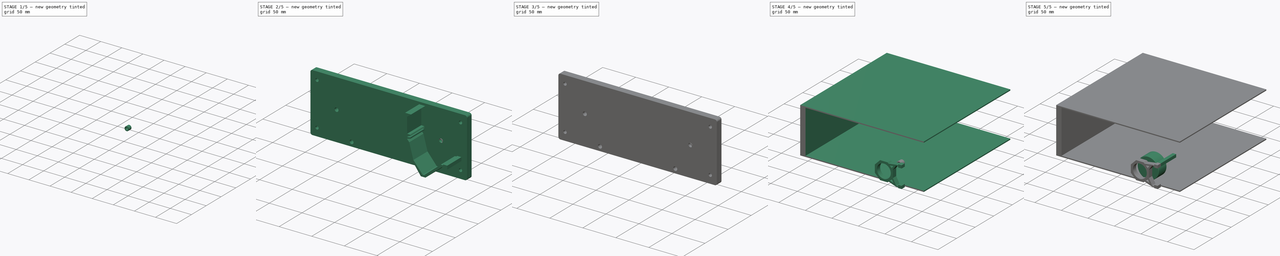
[diagram: build sequence overview — one tinted view per stage of 5, left to right]
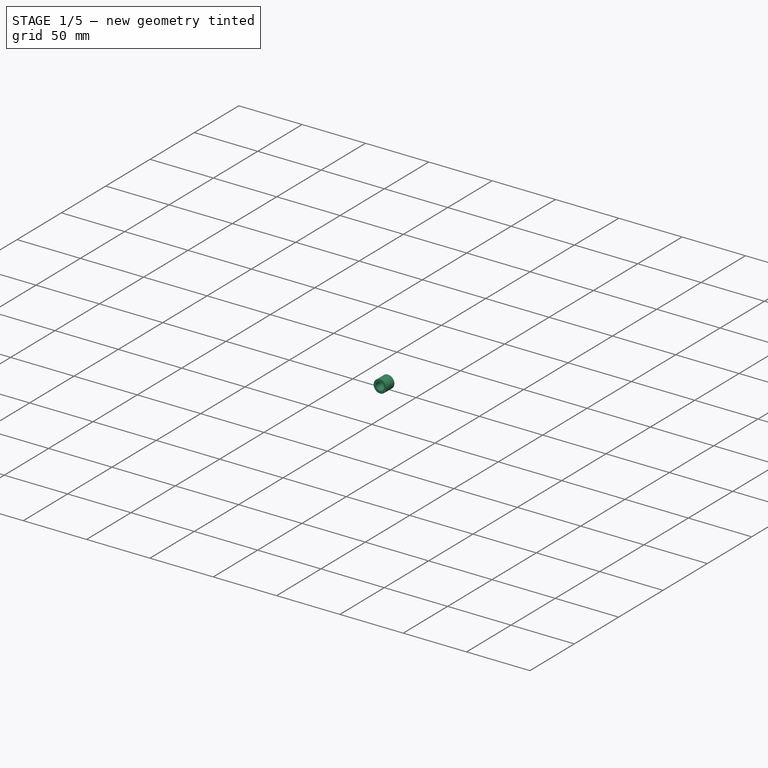
[diagram: stage 1 of 5 — iso view after this stage's code; geometry added in this stage tinted green]
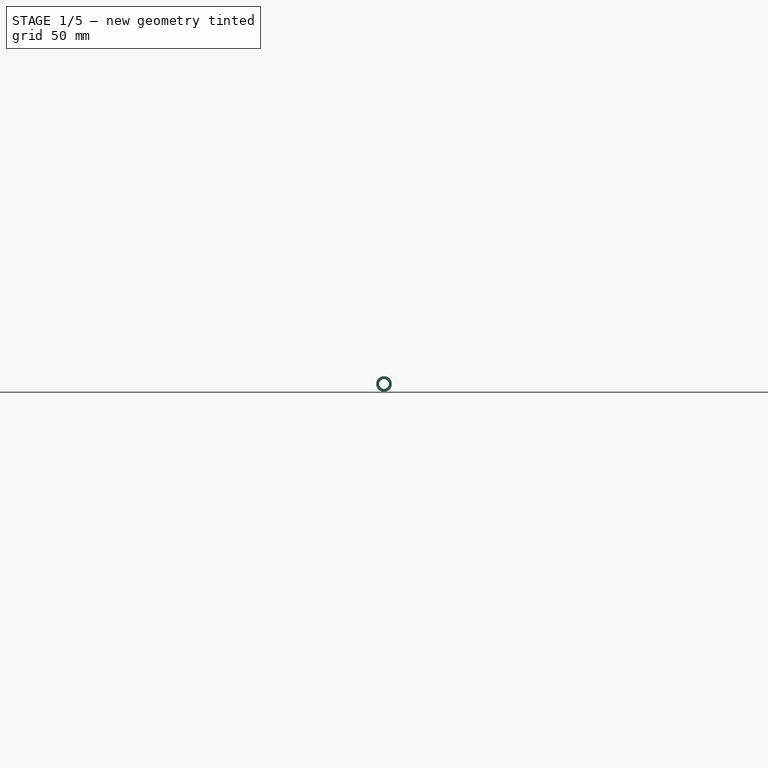
[diagram: stage 1 of 5 — front view after this stage's code; geometry added in this stage tinted green]
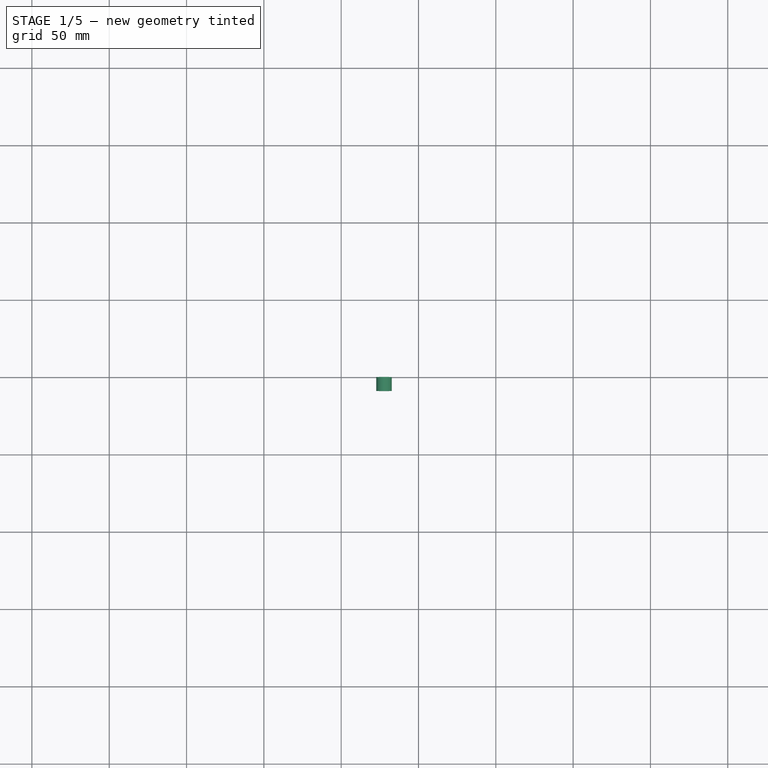
[diagram: stage 1 of 5 — top view after this stage's code; geometry added in this stage tinted green]
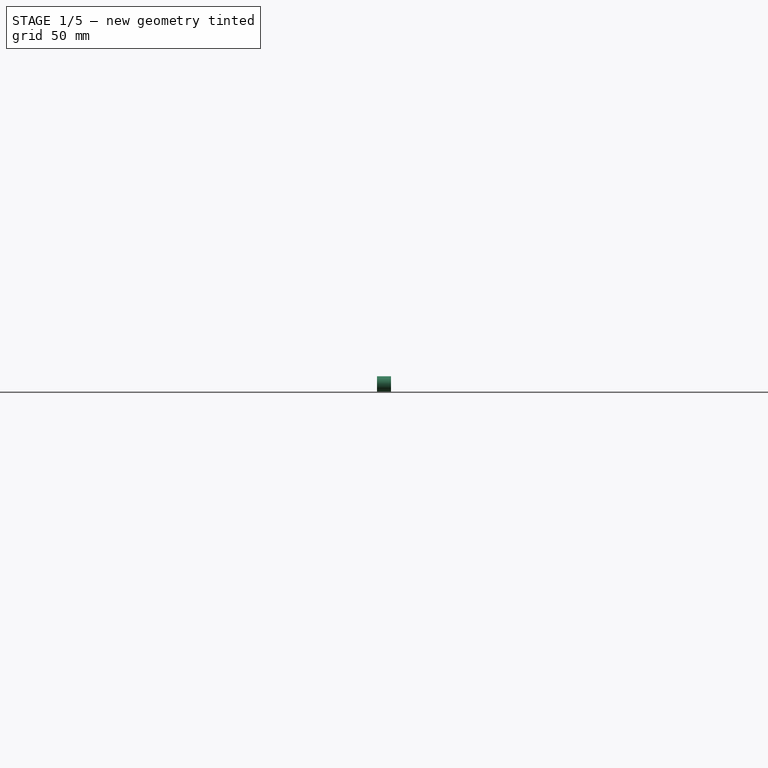
[diagram: stage 1 of 5 — right view after this stage's code; geometry added in this stage tinted green]
FCSTD DOCUMENT  (FreeCAD 0.19R)
Label: FrontPlate
License: All rights reserved
LicenseURL: http://en.wikipedia.org/wiki/All_rights_reserved
objects: Sketcher::SketchObject×16, PartDesign::Pad×13, PartDesign::ShapeBinder×12, PartDesign::Plane×10, PartDesign::Body×10, PartDesign::Fillet×6, PartDesign::Pocket×2, Spreadsheet::Sheet×1, PartDesign::Hole×1
note: 92 computed .brp shape members not serialized (recipe doc carries the construction recipe); baked Part::Feature solids carry a one-line shape summary decoded from their .brp

FEATURE [PartDesign::Body] Body003  label="PCB Holder - upper"
  Group = -> [Sketch002,Pad001,DatumPlane,Sketch003,Pad002]
  Origin = -> Origin003
  Placement = pos=(0,64,0) rot=(0,0,1;0rad)
  Tip = -> Pad002
FEATURE [Sketcher::SketchObject] Sketch004
  FullyConstrained = false
  MapMode = 5
  Placement = pos=(0,0,0) rot=(1,0,0;1.5708rad)
  Support = -> [XZ_Plane004]
  sketch-geometry (4):
    g0: LineSegment StartX=49.3147 StartY=10.3503 StartZ=0 EndX=49.5875 EndY=8.57105 EndZ=0
    g1: LineSegment StartX=49.5875 StartY=8.57105 StartZ=0 EndX=109.883 EndY=17.8165 EndZ=0
    g2: LineSegment StartX=109.883 StartY=17.8165 StartZ=0 EndX=109.61 EndY=19.5957 EndZ=0
    g3: LineSegment StartX=109.61 StartY=19.5957 StartZ=0 EndX=49.3147 EndY=10.3503 EndZ=0
  constraints (9):
    c: Coincident(g0,g1)
    c: Coincident(g1,g2)
    c: Coincident(g2,g3)
    c: Coincident(g3,g0)
    c: Parallel(g3,g1)
    c: Parallel(g0,g2)
    c: Angle(g0,g3) = 1.5708
    c: Distance(g0,g0) = 1.8
    c: Distance(g3) = 61
FEATURE [PartDesign::Pad] Pad003
  Direction = (1,1,1)
  Length = 41
  Length2 = 100
  Placement = pos=(0,0,0) rot=(1,0,0;1.5708rad)
  Profile = -> Sketch004
  Type = 0
FEATURE [PartDesign::Body] Body005  label="PBC Holder - lower"
  Group = -> [ShapeBinder,Sketch007,Pad004,DatumPlane001,Sketch008,Pocket,DatumPlane002,Sketch009,Pocket001]
  Origin = -> Origin005
  Placement = pos=(0,64,0) rot=(0,0,1;0rad)
  Tip = -> Pocket001
FEATURE [PartDesign::Plane] DatumPlane003
  Length = 165.196
  MapMode = 5
  Placement = pos=(-0.144939,0,0.94523) rot=(0.997108,0,0.076003;3.14159rad)
  ResizeMode = 0
  Support = -> [Pad003]
  Width = 129.006
FEATURE [Sketcher::SketchObject] Sketch010
  FullyConstrained = false
  MapMode = 5
  Placement = pos=(-0.144939,0,0.94523) rot=(0.997108,0,0.076003;3.14159rad)
  Support = -> [DatumPlane003]
  sketch-geometry (5):
    g0: LineSegment StartX=62.8611 StartY=16.7122 StartZ=0 EndX=89.9611 EndY=16.7122 EndZ=0
    g1: LineSegment StartX=89.9611 StartY=16.7122 StartZ=0 EndX=89.9611 EndY=-11.5 EndZ=0
    g2: LineSegment StartX=89.9611 StartY=-11.5 StartZ=0 EndX=62.8611 EndY=-11.5 EndZ=0
    g3: LineSegment StartX=62.8611 StartY=-11.5 StartZ=0 EndX=62.8611 EndY=16.7122 EndZ=0
    g4: LineSegment StartX=89.9611 StartY=11.9795 StartZ=0 EndX=106.451 EndY=12.5512 EndZ=0
  constraints (12):
    c: Coincident(g0,g1)
    c: Coincident(g1,g2)
    c: Coincident(g2,g3)
    c: Coincident(g3,g0)
    c: Horizontal(g0)
    c: Horizontal(g2)
    c: Vertical(g1)
    c: Vertical(g3)
    c: Distance(g2) = 27.1
    c: DistanceY(g-1,g1) = -11.5
    c: PointOnObject(g4,g1)
    c: Distance(g4) = 16.5
FEATURE [PartDesign::Pad] Pad005
  BaseFeature = -> Pad003
  Direction = (1,1,1)
  Length = 27.4
  Length2 = 100
  Placement = pos=(0,0,0) rot=(1,0,0;1.5708rad)
  Profile = -> Sketch010
  Type = 0
  expr: Length = 24.4mm + 3mm
FEATURE [PartDesign::Body] Body008  label="Enclosure"
  Group = -> [DatumPlane005,CopyHole001,Sketch013,Pad009]
  Origin = -> Origin008
  Tip = -> Pad009
FEATURE [PartDesign::Plane] DatumPlane006
  Length = 151.307
  MapMode = 5
  Placement = pos=(0,-16.7122,-1.8e-15) rot=(1,0,0;1.5708rad)
  ResizeMode = 0
  Support = -> [Pad005]
  Width = 66.4245
FEATURE [Sketcher::SketchObject] Sketch014
  ExternalGeometry = -> [Pad005]
  FullyConstrained = true
  MapMode = 5
  Placement = pos=(0,-16.7122,-1.8e-15) rot=(1,0,0;1.5708rad)
  Support = -> [DatumPlane006]
  sketch-geometry (6):
    g0: LineSegment StartX=66.1428 StartY=-16.6107 StartZ=0 EndX=89.2315 EndY=11.6149 EndZ=0
    g1: LineSegment StartX=92.9297 StartY=-12.5032 StartZ=0 EndX=62.4446 EndY=7.50746 EndZ=0
    g2: LineSegment StartX=61.9899 StartY=10.4728 StartZ=0 EndX=62.4446 EndY=7.50746 EndZ=0
    g3: LineSegment StartX=88.7768 StartY=14.5802 StartZ=0 EndX=89.2315 EndY=11.6149 EndZ=0
    g4: GeomPoint X=77.6872 Y=-2.49789 Z=0
    g5: Circle CenterX=77.6872 CenterY=-2.49789 CenterZ=0 NormalX=0 NormalY=0 NormalZ=1 AngleXU=0 Radius=3
  constraints (14):
    c: Coincident(g0,g-3)
    c: Coincident(g1,g-4)
    c: Coincident(g2,g-3)
    c: PointOnObject(g2,g-3)
    c: Coincident(g3,g-4)
    c: PointOnObject(g3,g-4)
    c: Coincident(g0,g3)
    c: Coincident(g1,g2)
    c: Equal(g2,g3)
    c: Distance(g2) = 3
    c: PointOnObject(g4,g1)
    c: PointOnObject(g4,g0)
    c: Coincident(g5,g4)
    c: Diameter(g5) = 6
FEATURE [PartDesign::Pad] Pad010  label="Shaft"
  BaseFeature = -> Pad005
  Direction = (1,1,1)
  Length = 63
  Length2 = 100
  Placement = pos=(0,0,0) rot=(1,0,0;1.5708rad)
  Profile = -> Sketch014
  Type = 0
FEATURE [PartDesign::ShapeBinder] ShapeBinder007
  Placement = pos=(0,-79.7122,9e-15) rot=(1,0,0;1.5708rad)
  Support = -> [Pad010]
  TraceSupport = false
FEATURE [PartDesign::ShapeBinder] CopyPad010
  Placement = pos=(0,-63,7e-15) rot=(0,0,1;0rad)
  TraceSupport = false
FEATURE [PartDesign::Plane] DatumPlane009
  AttachmentOffset = pos=(0,0,-80) rot=(0,0,1;0rad)
  Length = 120.226
  MapMode = 5
  Placement = pos=(0,0.287843,-1.08e-14) rot=(1,0,0;1.5708rad)
  ResizeMode = 0
  Support = -> [CopyPad010]
  Width = 64.5387
FEATURE [Sketcher::SketchObject] Sketch016
  ExternalGeometry = -> [ShapeBinder007]
  FullyConstrained = true
  MapMode = 5
  Placement = pos=(0,0.287843,-1.08e-14) rot=(1,0,0;1.5708rad)
  Support = -> [DatumPlane009]
  sketch-geometry (2):
    g0: Circle CenterX=77.6872 CenterY=-2.49789 CenterZ=0 NormalX=0 NormalY=0 NormalZ=1 AngleXU=0 Radius=3.15
    g1: Circle CenterX=77.6872 CenterY=-2.49789 CenterZ=0 NormalX=0 NormalY=0 NormalZ=1 AngleXU=0 Radius=5.05
  constraints (4):
    c: Coincident(g0,g-3)
    c: Coincident(g1,g0)
    c: Diameter(g0) = 6.3
    c: Diameter(g1) = 10.1
FEATURE [PartDesign::Pad] Pad012
  Direction = (1,1,1)
  Length = 9
  Length2 = 100
  Placement = pos=(0,0.287843,-1.08e-14) rot=(1,0,0;1.5708rad)
  Profile = -> Sketch016
  Type = 0
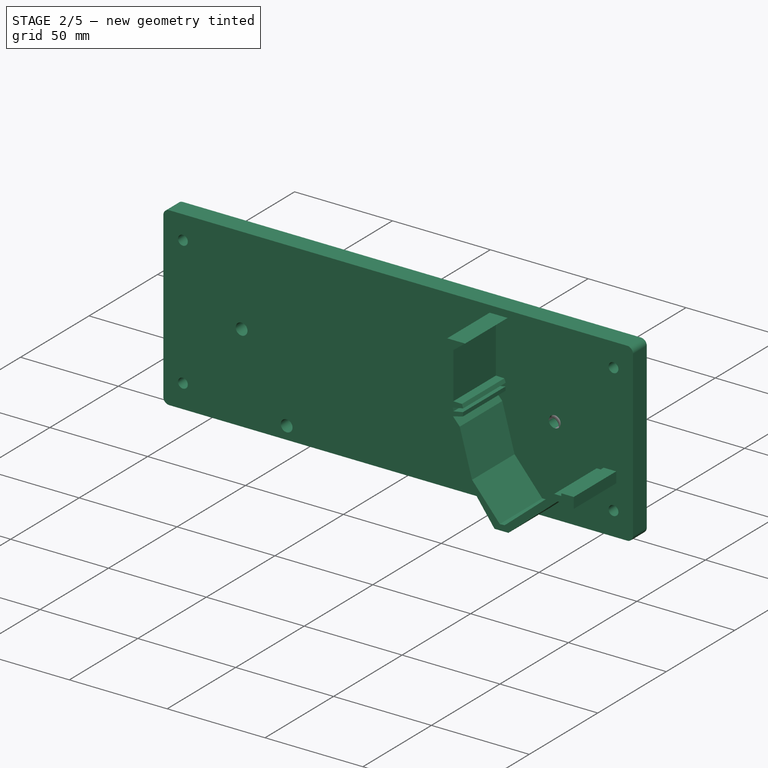
[diagram: stage 2 of 5 — iso view after this stage's code; geometry added in this stage tinted green]
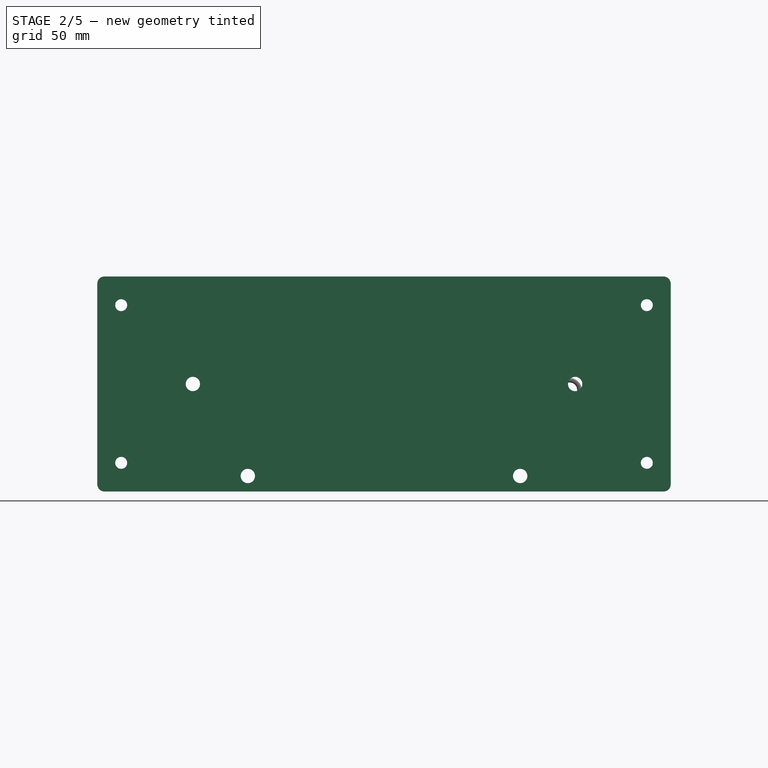
[diagram: stage 2 of 5 — front view after this stage's code; geometry added in this stage tinted green]
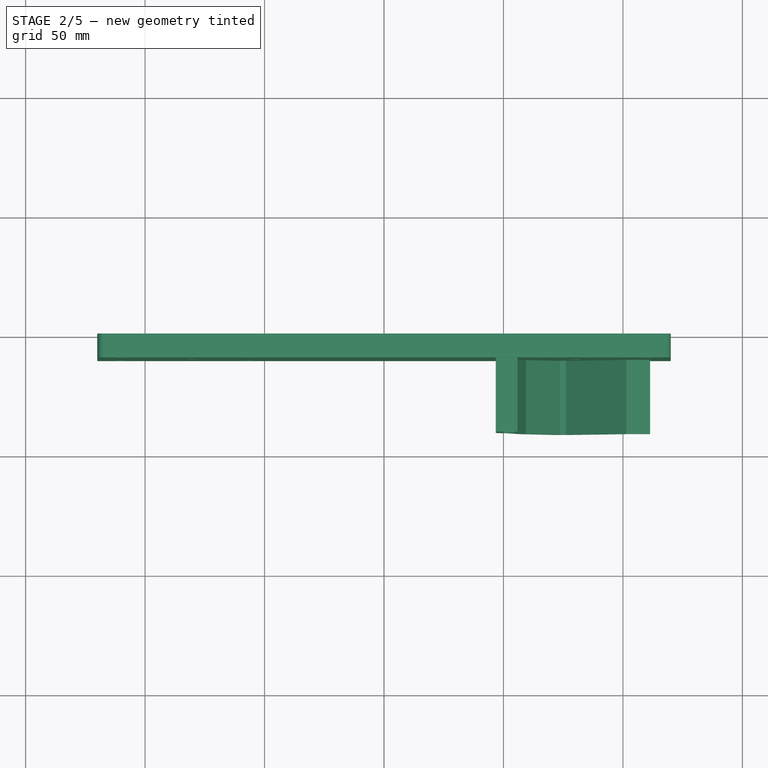
[diagram: stage 2 of 5 — top view after this stage's code; geometry added in this stage tinted green]
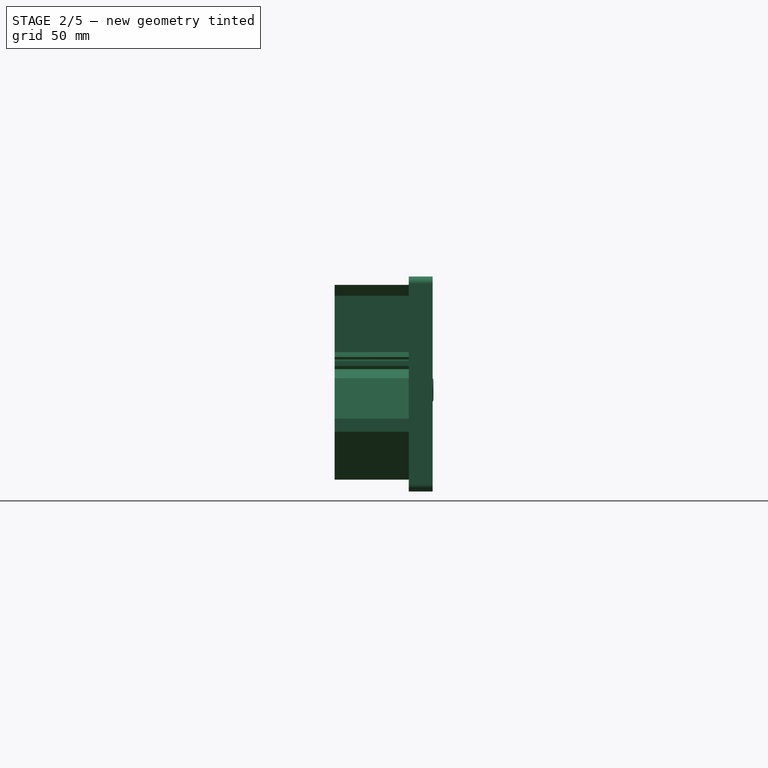
[diagram: stage 2 of 5 — right view after this stage's code; geometry added in this stage tinted green]
FEATURE [Spreadsheet::Sheet] Spreadsheet
  cells = A3=TrackDepth; B3(TrackDepth)==6.4mm; A4=TrachHeight; B4(TrachHeight)==5.5mm; A5=TrackOpening; B5(TrackOpening)==3.3mm - 0.3mm; A6=TrackDistance; B6(TrackDistance)==35mm
FEATURE [Sketcher::SketchObject] Sketch
  FullyConstrained = true
  MapMode = 5
  Placement = pos=(0,0,0) rot=(1,0,0;1.5708rad)
  Support = -> [XZ_Plane001]
  sketch-geometry (8):
    g0: LineSegment StartX=-120 StartY=45 StartZ=0 EndX=120 EndY=45 EndZ=0
    g1: LineSegment StartX=120 StartY=45 StartZ=0 EndX=120 EndY=-45 EndZ=0
    g2: LineSegment StartX=120 StartY=-45 StartZ=0 EndX=-120 EndY=-45 EndZ=0
    g3: LineSegment StartX=-120 StartY=-45 StartZ=0 EndX=-120 EndY=45 EndZ=0
    g4: Circle CenterX=-110 CenterY=33 CenterZ=0 NormalX=0 NormalY=0 NormalZ=1 AngleXU=0 Radius=2.5
    g5: Circle CenterX=110 CenterY=33 CenterZ=0 NormalX=0 NormalY=0 NormalZ=1 AngleXU=0 Radius=2.5
    g6: Circle CenterX=-110 CenterY=-33 CenterZ=0 NormalX=0 NormalY=0 NormalZ=1 AngleXU=0 Radius=2.5
    g7: Circle CenterX=110 CenterY=-33 CenterZ=0 NormalX=0 NormalY=0 NormalZ=1 AngleXU=0 Radius=2.5
  constraints (22):
    c: Coincident(g0,g1)
    c: Coincident(g1,g2)
    c: Coincident(g2,g3)
    c: Coincident(g3,g0)
    c: Horizontal(g0)
    c: Horizontal(g2)
    c: Vertical(g1)
    c: Vertical(g3)
    c: DistanceX(g0,g0) = 240
    c: DistanceY(g3,g3) = 90
    c: Symmetric(g0,g1,g-1)
    c: Diameter(g4) = 5
    c: Equal(g4,g6)
    c: Equal(g6,g7)
    c: Equal(g7,g5)
    c: Horizontal(g6,g7)
    c: Horizontal(g4,g5)
    c: Vertical(g5,g7)
    c: Vertical(g4,g6)
    c: Symmetric(g4,g7,g-1)
    c: DistanceX(g2,g6) = 10
    c: DistanceY(g2,g6) = 12
FEATURE [PartDesign::Pad] Pad
  Direction = (1,1,1)
  Length = 10
  Length2 = 100
  Placement = pos=(0,0,0) rot=(1,0,0;1.5708rad)
  Profile = -> Sketch
  Type = 0
FEATURE [PartDesign::Fillet] Fillet
  Base = -> Pad [Edge1,Edge8,Edge2,Edge5]
  BaseFeature = -> Pad
  Placement = pos=(0,0,0) rot=(1,0,0;1.5708rad)
  Radius = 3
  SupportTransform = false
FEATURE [Sketcher::SketchObject] Sketch006
  FullyConstrained = false
  MapMode = 5
  Placement = pos=(0,0,0) rot=(1,0,0;1.5708rad)
  Support = -> [XZ_Plane]
  expr: Constraints[4] = Spreadsheet.TrackDistance
  sketch-geometry (6):
    g0: LineSegment StartX=105 StartY=60.3578 StartZ=0 EndX=105 EndY=-84.743 EndZ=0
    g1: LineSegment StartX=140.941 StartY=15 StartZ=0 EndX=-0.019066 EndY=15 EndZ=0
    g2: LineSegment StartX=140.941 StartY=-20 StartZ=0 EndX=-0.019066 EndY=-20 EndZ=0
    g3: LineSegment StartX=-0.27169 StartY=-40 StartZ=0 EndX=140.941 EndY=-40 EndZ=0
    g4: LineSegment StartX=-0.019066 StartY=40 StartZ=0 EndX=140.941 EndY=40 EndZ=0
    g5: LineSegment StartX=115 StartY=60.3578 StartZ=0 EndX=115 EndY=-84.743 EndZ=0
  constraints (17):
    c: Vertical(g0)
    c: DistanceX(g-1,g0) = 105
    c: Horizontal(g1)
    c: Horizontal(g2)
    c: DistanceY(g2,g1) = 35
    c: DistanceY(g2,g-1) = 20
    c: Horizontal(g3)
    c: Horizontal(g4)
    c: DistanceY(g3,g-1) = 40
    c: DistanceY(g-1,g4) = 40
    c: Vertical(g3,g2)
    c: Vertical(g2,g1)
    c: Vertical(g1,g4)
    c: Vertical(g5)
    c: DistanceX(g0,g5) = 10
    c: Horizontal(g0,g5)
    c: Equal(g0,g5)
FEATURE [PartDesign::Body] Body  label="MasterBody"
  Group = -> [Sketch006]
  Origin = -> Origin
FEATURE [PartDesign::ShapeBinder] ShapeBinder
  Support = -> [Sketch006]
  TraceSupport = false
FEATURE [Sketcher::SketchObject] Sketch007
  ExternalGeometry = -> [ShapeBinder]
  FullyConstrained = false
  MapMode = 5
  Placement = pos=(0,0,0) rot=(1,0,0;1.5708rad)
  Support = -> [XZ_Plane005]
  expr: Constraints[15] = Spreadsheet.TrackDepth
  expr: Constraints[16] = Spreadsheet.TrachHeight
  expr: Constraints[17] = Spreadsheet.TrackOpening
  sketch-geometry (30):
    g0: LineSegment StartX=105 StartY=-15.75 StartZ=0 EndX=105 EndY=-14.5 EndZ=0
    g1: LineSegment StartX=105 StartY=-14.5 StartZ=0 EndX=111.4 EndY=-14.5 EndZ=0
    g2: LineSegment StartX=111.4 StartY=-14.5 StartZ=0 EndX=111.4 EndY=-20 EndZ=0
    g3: LineSegment StartX=111.4 StartY=-20 StartZ=0 EndX=105 EndY=-20 EndZ=0
    g4: LineSegment StartX=105 StartY=-20 StartZ=0 EndX=105 EndY=-18.75 EndZ=0
    g5: LineSegment StartX=105 StartY=-18.75 StartZ=0 EndX=103.174 EndY=-18.75 EndZ=0
    g6: LineSegment StartX=103.174 StartY=-18.75 StartZ=0 EndX=78.0249 EndY=-40 EndZ=0
    g7: LineSegment StartX=105 StartY=-15.75 StartZ=0 EndX=101.424 EndY=-15.75 EndZ=0
    g8: LineSegment StartX=101.424 StartY=-15.75 StartZ=0 EndX=76.1622 EndY=-36.9463 EndZ=0
    g9: LineSegment StartX=49.7373 StartY=6.22237 StartZ=0 EndX=54.8278 EndY=7.5553 EndZ=0
    g10: LineSegment StartX=54.8278 StartY=7.5553 StartZ=0 EndX=54.8278 EndY=9.5553 EndZ=0
    g11: LineSegment StartX=54.8278 StartY=9.5553 StartZ=0 EndX=49.9169 EndY=8.6159 EndZ=0
    g12: LineSegment StartX=49.9169 StartY=8.6159 StartZ=0 EndX=49.5975 EndY=10.2856 EndZ=0
    g13: LineSegment StartX=49.5975 StartY=10.2856 StartZ=0 EndX=54.935 EndY=11.3066 EndZ=0
    g14: LineSegment StartX=54.935 StartY=11.3066 StartZ=0 EndX=54.2463 EndY=13.1843 EndZ=0
    g15: LineSegment StartX=49.9231 StartY=36.9161 StartZ=0 EndX=49.9231 EndY=13.2852 EndZ=0
    g16: LineSegment StartX=49.9231 StartY=13.2852 StartZ=0 EndX=54.2463 EndY=13.1843 EndZ=0
    g17: LineSegment StartX=46.7808 StartY=41.5 StartZ=0 EndX=55.8689 EndY=41.5 EndZ=0
    g18: LineSegment StartX=46.7808 StartY=13.1 StartZ=0 EndX=46.7808 EndY=41.5 EndZ=0
    g19: LineSegment StartX=49.9231 StartY=36.9161 StartZ=0 EndX=55.8689 EndY=41.5 EndZ=0
    g20: LineSegment StartX=76.1622 StartY=-36.9463 StartZ=0 EndX=73.6222 EndY=-37.1156 EndZ=0
    g21: LineSegment StartX=73.6222 StartY=-37.1156 StartZ=0 EndX=59.448 EndY=-20.4766 EndZ=0
    g22: LineSegment StartX=78.0249 StartY=-40 StartZ=0 EndX=70.9129 EndY=-40 EndZ=0
    g23: LineSegment StartX=70.9129 StartY=-40 StartZ=0 EndX=57.0911 EndY=-20.8925 EndZ=0
    g24: LineSegment StartX=57.0911 StartY=-20.8925 StartZ=0 EndX=52.0606 EndY=-0.840481 EndZ=0
    g25: LineSegment StartX=52.0606 StartY=-0.840481 StartZ=0 EndX=47.321 EndY=5.57184 EndZ=0
    g26: LineSegment StartX=47.321 StartY=5.57184 StartZ=0 EndX=46.7808 EndY=13.1 EndZ=0
    g27: LineSegment StartX=59.448 StartY=-20.4766 StartZ=0 EndX=53.1758 EndY=2.41215 EndZ=0
    g28: LineSegment StartX=53.1758 StartY=2.41215 StartZ=0 EndX=49.7373 EndY=6.22237 EndZ=0
    g29: LineSegment StartX=55.8904 StartY=9.34044 StartZ=0 EndX=60.9259 EndY=-20.2339 EndZ=0
  constraints (55):
    c: PointOnObject(g0,g-4)
    c: PointOnObject(g0,g-4)
    c: Coincident(g0,g1)
    c: Horizontal(g1)
    c: Coincident(g1,g2)
    c: PointOnObject(g2,g-3)
    c: Vertical(g2)
    c: Coincident(g2,g3)
    c: PointOnObject(g3,g-3)
    c: Coincident(g3,g4)
    c: Vertical(g4)
    c: Coincident(g4,g5)
    c: Horizontal(g5)
    c: Coincident(g5,g6)
    c: PointOnObject(g4,g-4)
    c: DistanceX(g1,g1) = 6.4
    c: DistanceY(g2,g2) = 5.5
    c: DistanceY(g4,g0) = 3
    c: Equal(g4,g0)
    c: Coincident(g0,g7)
    c: Horizontal(g7)
    c: Coincident(g7,g8)
    c: Coincident(g9,g10)
    c: Vertical(g10)
    c: Coincident(g10,g11)
    c: Coincident(g11,g12)
    c: Coincident(g12,g13)
    c: Coincident(g13,g14)
    c: Equal(g14,g10)
    c: Distance(g12) = 1.7
    c: Parallel(g13,g11)
    c: Angle(g12,g13) = 1.5708
    c: Distance(g10) = 2
    c: Distance(g11) = 5
    c: Vertical(g15)
    c: Coincident(g15,g16)
    c: Coincident(g16,g14)
    c: Horizontal(g17)
    c: Coincident(g18,g17)
    c: Vertical(g18)
    c: Coincident(g19,g15)
    c: Coincident(g19,g17)
    c: DistanceY(g-5,g17) = 1.5
    c: Coincident(g8,g20)
    c: Coincident(g20,g21)
    c: Coincident(g6,g22)
    c: Coincident(g22,g23)
    c: Coincident(g23,g24)
    c: Coincident(g24,g25)
    c: Coincident(g25,g26)
    c: Coincident(g26,g18)
    c: Coincident(g21,g27)
    c: Coincident(g27,g28)
    c: Coincident(g28,g9)
    c: Distance(g29) = 30
FEATURE [PartDesign::Pad] Pad004
  Direction = (1,1,1)
  Length = 41
  Length2 = 100
  Placement = pos=(0,0,0) rot=(1,0,0;1.5708rad)
  Profile = -> Sketch007
  Type = 0
FEATURE [PartDesign::Hole] Hole
  BaseFeature = -> Fillet
  Depth = 25
  DepthType = 0
  Diameter = 6
  DrillForDepth = false
  DrillPoint = 1
  DrillPointAngle = 118
  HoleCutCountersinkAngle = 90
  HoleCutCustomValues = false
  HoleCutDepth = 0
  HoleCutDiameter = 6.1
  HoleCutType = 0
  ModelActualThread = false
  Placement = pos=(0,0,0) rot=(1,0,0;1.5708rad)
  Profile = -> Sketch001
  Tapered = false
  TaperedAngle = 90
  ThreadAngle = 0
  ThreadClass = 0
  ThreadCutOffInner = 0
  ThreadCutOffOuter = 0
  ThreadDirection = 0
  ThreadFit = 0
  ThreadPitch = 0
  ThreadSize = 0
  ThreadType = 0
  Threaded = false
FEATURE [PartDesign::Body] Body009  label="Bearing holder"
  Group = -> [ShapeBinder005,DatumPlane008,CopyPocket001,Sketch015,ShapeBinder006,Pad011,Fillet004]
  Origin = -> Origin009
  Placement = pos=(0,54,0) rot=(0,0,1;0rad)
  Tip = -> Fillet004
FEATURE [PartDesign::Fillet] Fillet005
  Base = -> Pad012 [Edge5,Edge2,Edge3,Edge6]
  BaseFeature = -> Pad012
  Placement = pos=(0,0.287843,-1.08e-14) rot=(1,0,0;1.5708rad)
  Radius = 0.75
  SupportTransform = false
FEATURE [PartDesign::Body] Body010  label="Bearing center piece"
  Group = -> [ShapeBinder007,DatumPlane009,CopyPad010,Sketch016,Pad012,Fillet005]
  Origin = -> Origin010
  Tip = -> Fillet005
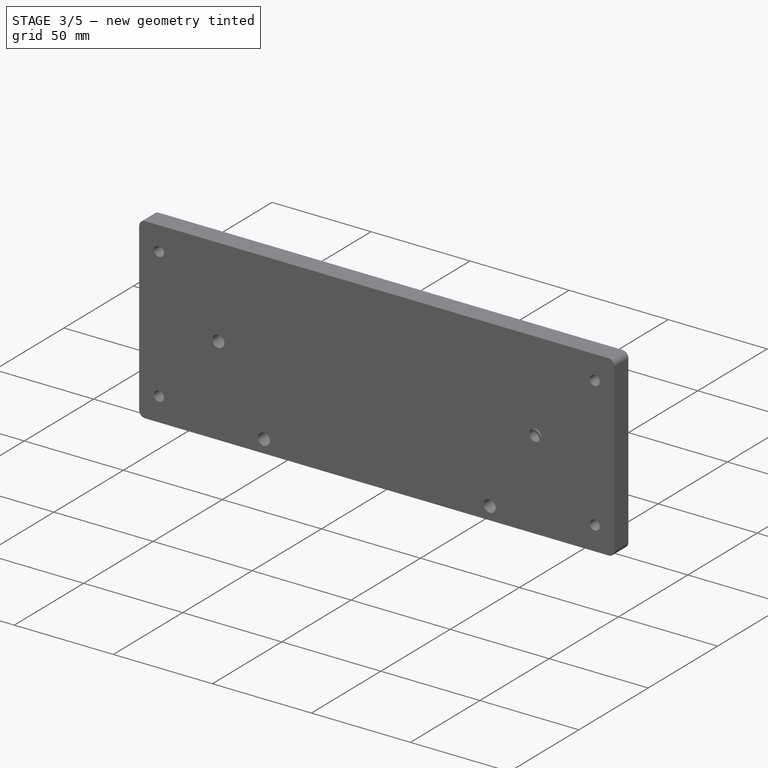
[diagram: stage 3 of 5 — iso view after this stage's code; geometry added in this stage tinted green]
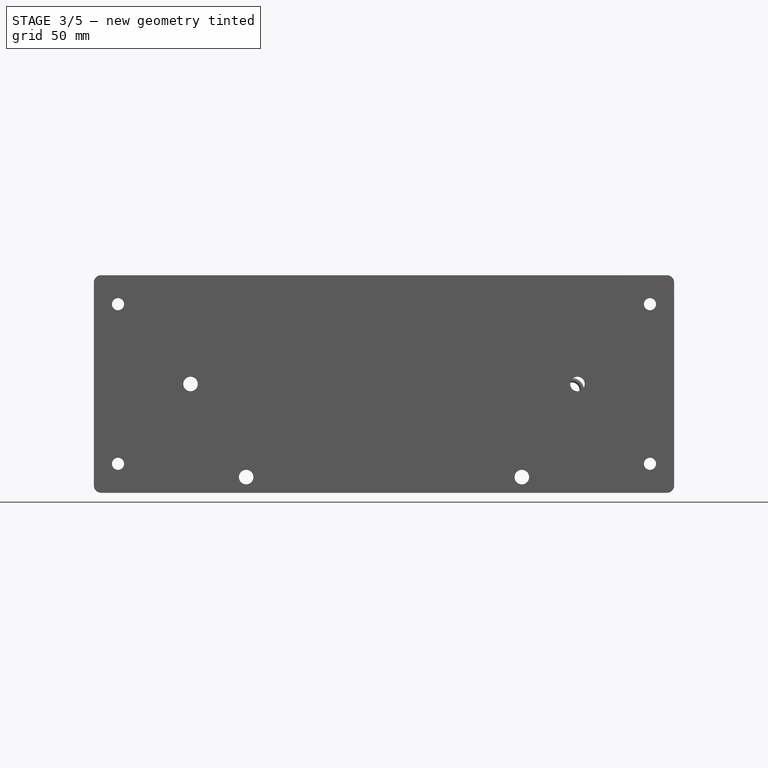
[diagram: stage 3 of 5 — front view after this stage's code; geometry added in this stage tinted green]
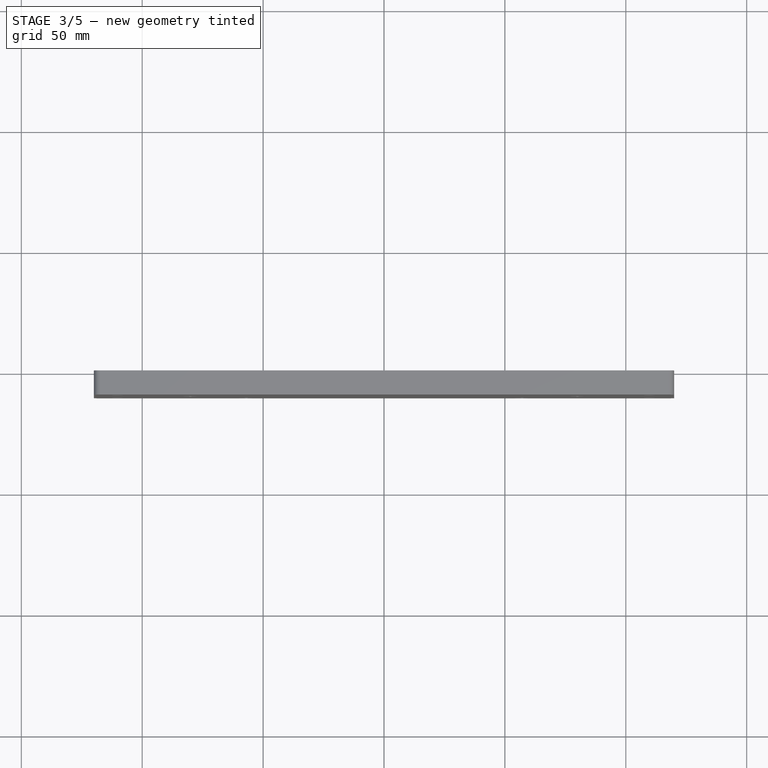
[diagram: stage 3 of 5 — top view after this stage's code; geometry added in this stage tinted green]
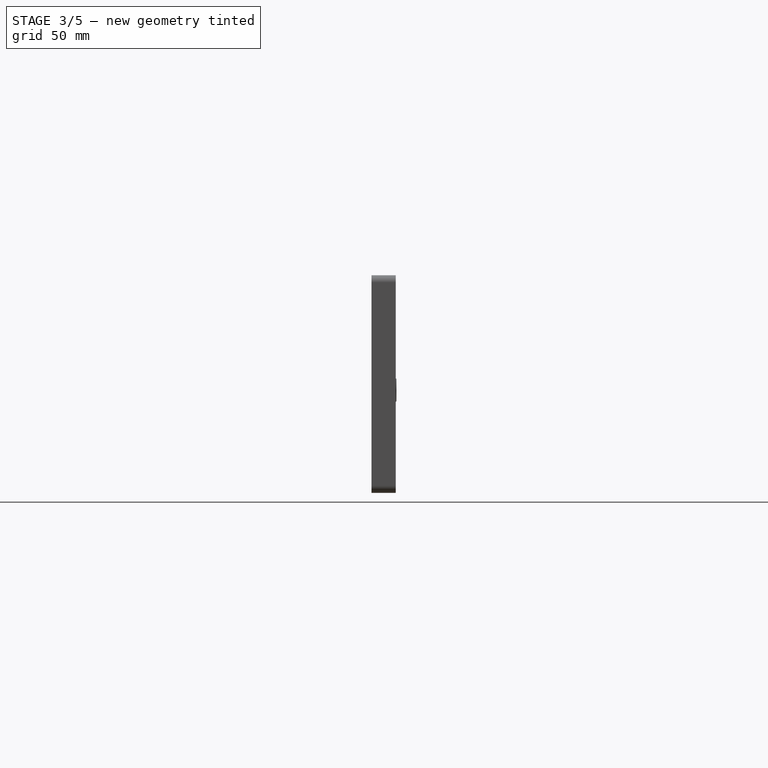
[diagram: stage 3 of 5 — right view after this stage's code; geometry added in this stage tinted green]
FEATURE [PartDesign::Plane] DatumPlane001
  Length = 132.049
  MapMode = 5
  Placement = pos=(50.0764,0,13.7225) rot=(0.606512,0,0.795075;3.14159rad)
  ResizeMode = 0
  Support = -> [Pad004]
  Width = 83.3977
FEATURE [Sketcher::SketchObject] Sketch008
  ExternalGeometry = -> [Pad004]
  FullyConstrained = true
  MapMode = 5
  Placement = pos=(50.0764,0,13.7225) rot=(0.606512,0,0.795075;3.14159rad)
  Support = -> [DatumPlane001]
  sketch-geometry (16):
    g0: LineSegment StartX=-29.4599 StartY=35 StartZ=0 EndX=-22.4599 EndY=35 EndZ=0
    g1: LineSegment StartX=-22.4599 StartY=35 StartZ=0 EndX=-22.4599 EndY=23.5 EndZ=0
    g2: LineSegment StartX=-22.4599 StartY=23.5 StartZ=0 EndX=-29.4599 EndY=23.5 EndZ=0
    g3: LineSegment StartX=-29.4599 StartY=23.5 StartZ=0 EndX=-29.4599 EndY=35 EndZ=0
    g4: LineSegment StartX=-16.4599 StartY=17.5 StartZ=0 EndX=-9.45988 EndY=17.5 EndZ=0
    g5: LineSegment StartX=-9.45988 StartY=17.5 StartZ=0 EndX=-9.45988 EndY=6 EndZ=0
    g6: LineSegment StartX=-9.45988 StartY=6 StartZ=0 EndX=-16.4599 EndY=6 EndZ=0
    g7: LineSegment StartX=-16.4599 StartY=6 StartZ=0 EndX=-16.4599 EndY=17.5 EndZ=0
    g8: LineSegment StartX=-29.4599 StartY=17.5 StartZ=0 EndX=-22.4599 EndY=17.5 EndZ=0
    g9: LineSegment StartX=-22.4599 StartY=17.5 StartZ=0 EndX=-22.4599 EndY=6 EndZ=0
    g10: LineSegment StartX=-22.4599 StartY=6 StartZ=0 EndX=-29.4599 EndY=6 EndZ=0
    g11: LineSegment StartX=-29.4599 StartY=6 StartZ=0 EndX=-29.4599 EndY=17.5 EndZ=0
    g12: LineSegment StartX=-16.4599 StartY=35 StartZ=0 EndX=-9.45988 EndY=35 EndZ=0
    g13: LineSegment StartX=-9.45988 StartY=35 StartZ=0 EndX=-9.45988 EndY=23.5 EndZ=0
    g14: LineSegment StartX=-9.45988 StartY=23.5 StartZ=0 EndX=-16.4599 EndY=23.5 EndZ=0
    g15: LineSegment StartX=-16.4599 StartY=23.5 StartZ=0 EndX=-16.4599 EndY=35 EndZ=0
  constraints (48):
    c: Coincident(g0,g1)
    c: Coincident(g1,g2)
    c: Coincident(g2,g3)
    c: Coincident(g3,g0)
    c: Horizontal(g0)
    c: Horizontal(g2)
    c: Vertical(g1)
    c: Vertical(g3)
    c: Coincident(g4,g5)
    c: Coincident(g5,g6)
    c: Coincident(g6,g7)
    c: Coincident(g7,g4)
    c: Horizontal(g4)
    c: Horizontal(g6)
    c: Vertical(g5)
    c: Vertical(g7)
    c: Coincident(g8,g9)
    c: Coincident(g9,g10)
    c: Coincident(g10,g11)
    c: Coincident(g11,g8)
    c: Horizontal(g8)
    c: Horizontal(g10)
    c: Vertical(g9)
    c: Vertical(g11)
    c: Coincident(g12,g13)
    c: Coincident(g13,g14)
    c: Coincident(g14,g15)
    c: Coincident(g15,g12)
    c: Horizontal(g12)
    c: Horizontal(g14)
    c: Vertical(g13)
    c: Vertical(g15)
    c: Equal(g0,g12)
    c: Equal(g12,g4)
    c: Equal(g4,g8)
    c: DistanceX(g0,g0) = 7
    c: Horizontal(g0,g12)
    c: Vertical(g2,g8)
    c: DistanceY(g8,g2) = 6
    c: DistanceY(g-1,g10) = 6
    c: Distance(g0,g-3) = 6
    c: DistanceX(g0,g12) = 6
    c: DistanceX(g-3,g0) = 6
    c: Equal(g3,g11)
    c: Equal(g11,g7)
    c: Equal(g7,g15)
    c: Horizontal(g6,g9)
    c: Vertical(g14,g4)
FEATURE [PartDesign::Pocket] Pocket
  BaseFeature = -> Pad004
  Length = 5
  Length2 = 100
  Placement = pos=(0,0,0) rot=(1,0,0;1.5708rad)
  Profile = -> Sketch008
  Type = 1
FEATURE [PartDesign::Plane] DatumPlane002
  Length = 177.227
  MapMode = 5
  Placement = pos=(49.6591,0,-59.1841) rot=(-0.34201,0,0.939696;3.14159rad)
  ResizeMode = 0
  Support = -> [Pocket]
  Width = 86.3508
FEATURE [Sketcher::SketchObject] Sketch009
  ExternalGeometry = -> [Pocket]
  FullyConstrained = true
  MapMode = 5
  Placement = pos=(49.6591,0,-59.1841) rot=(-0.34201,0,0.939696;3.14159rad)
  Support = -> [DatumPlane002]
  sketch-geometry (16):
    g0: LineSegment StartX=-61.5732 StartY=35 StartZ=0 EndX=-54.0849 EndY=35 EndZ=0
    g1: LineSegment StartX=-54.0849 StartY=35 StartZ=0 EndX=-54.0849 EndY=23.5 EndZ=0
    g2: LineSegment StartX=-54.0849 StartY=23.5 StartZ=0 EndX=-61.5732 EndY=23.5 EndZ=0
    g3: LineSegment StartX=-61.5732 StartY=23.5 StartZ=0 EndX=-61.5732 EndY=35 EndZ=0
    g4: LineSegment StartX=-48.0849 StartY=35 StartZ=0 EndX=-40.5967 EndY=35 EndZ=0
    g5: LineSegment StartX=-40.5967 StartY=35 StartZ=0 EndX=-40.5967 EndY=23.5 EndZ=0
    g6: LineSegment StartX=-40.5967 StartY=23.5 StartZ=0 EndX=-48.0849 EndY=23.5 EndZ=0
    g7: LineSegment StartX=-48.0849 StartY=23.5 StartZ=0 EndX=-48.0849 EndY=35 EndZ=0
    g8: LineSegment StartX=-61.5732 StartY=17.5 StartZ=0 EndX=-54.0849 EndY=17.5 EndZ=0
    g9: LineSegment StartX=-54.0849 StartY=17.5 StartZ=0 EndX=-54.0849 EndY=6 EndZ=0
    g10: LineSegment StartX=-54.0849 StartY=6 StartZ=0 EndX=-61.5732 EndY=6 EndZ=0
    g11: LineSegment StartX=-61.5732 StartY=6 StartZ=0 EndX=-61.5732 EndY=17.5 EndZ=0
    g12: LineSegment StartX=-48.0849 StartY=17.5 StartZ=0 EndX=-40.5967 EndY=17.5 EndZ=0
    g13: LineSegment StartX=-40.5967 StartY=17.5 StartZ=0 EndX=-40.5967 EndY=6 EndZ=0
    g14: LineSegment StartX=-40.5967 StartY=6 StartZ=0 EndX=-48.0849 EndY=6 EndZ=0
    g15: LineSegment StartX=-48.0849 StartY=6 StartZ=0 EndX=-48.0849 EndY=17.5 EndZ=0
  constraints (48):
    c: Coincident(g0,g1)
    c: Coincident(g1,g2)
    c: Coincident(g2,g3)
    c: Coincident(g3,g0)
    c: Horizontal(g0)
    c: Horizontal(g2)
    c: Vertical(g1)
    c: Vertical(g3)
    c: Coincident(g4,g5)
    c: Coincident(g5,g6)
    c: Coincident(g6,g7)
    c: Coincident(g7,g4)
    c: Horizontal(g4)
    c: Horizontal(g6)
    c: Vertical(g5)
    c: Vertical(g7)
    c: Coincident(g8,g9)
    c: Coincident(g9,g10)
    c: Coincident(g10,g11)
    c: Coincident(g11,g8)
    c: Horizontal(g8)
    c: Horizontal(g10)
    c: Vertical(g9)
    c: Vertical(g11)
    c: Coincident(g12,g13)
    c: Coincident(g13,g14)
    c: Coincident(g14,g15)
    c: Coincident(g15,g12)
    c: Horizontal(g12)
    c: Horizontal(g14)
    c: Vertical(g13)
    c: Vertical(g15)
    c: Horizontal(g0,g4)
    c: Horizontal(g9,g14)
    c: Vertical(g2,g8)
    c: Vertical(g5,g12)
    c: Equal(g0,g8)
    c: Equal(g8,g4)
    c: Equal(g4,g12)
    c: Equal(g3,g11)
    c: Equal(g11,g7)
    c: Equal(g7,g15)
    c: DistanceX(g-3,g0) = 6
    c: DistanceY(g0,g-3) = 6
    c: DistanceY(g-1,g10) = 6
    c: DistanceX(g8,g12) = 6
    c: DistanceY(g8,g1) = 6
    c: DistanceX(g4,g-3) = 6
FEATURE [PartDesign::Pocket] Pocket001
  BaseFeature = -> Pocket
  Length = 5
  Length2 = 100
  Placement = pos=(0,0,0) rot=(1,0,0;1.5708rad)
  Profile = -> Sketch009
  Type = 1
FEATURE [PartDesign::ShapeBinder] ShapeBinder001  label="ShapeBinder - upper"
  Support = -> [Sketch002]
  TraceSupport = false
FEATURE [PartDesign::ShapeBinder] ShapeBinder002  label="ShapeBinder . lower"
  Support = -> [Pocket001]
  TraceSupport = false
FEATURE [PartDesign::ShapeBinder] ShapeBinder003  label="ShapeBinder - Potentiometer"
  Support = -> [Pad005]
  TraceSupport = false
FEATURE [Sketcher::SketchObject] Sketch011
  ExternalGeometry = -> [ShapeBinder001,ShapeBinder002,ShapeBinder003]
  FullyConstrained = false
  MapMode = 5
  Placement = pos=(0,0,0) rot=(1,0,0;1.5708rad)
  Support = -> [XZ_Plane006]
  sketch-geometry (40):
    g0: LineSegment StartX=105.031 StartY=18.7111 StartZ=0 EndX=105.031 EndY=20.5111 EndZ=0
    g1: LineSegment StartX=105.031 StartY=20.5111 StartZ=0 EndX=111.431 EndY=20.5111 EndZ=0
    g2: LineSegment StartX=111.431 StartY=20.5111 StartZ=0 EndX=111.431 EndY=15.0111 EndZ=0
    g3: LineSegment StartX=111.431 StartY=15.0111 StartZ=0 EndX=105.031 EndY=15.0111 EndZ=0
    g4: LineSegment StartX=105.031 StartY=15.0111 StartZ=0 EndX=105.031 EndY=17.0111 EndZ=0
    g5: LineSegment StartX=92.4786 StartY=10.8922 StartZ=0 EndX=95.2964 EndY=-7.48439 EndZ=0
    g6: LineSegment StartX=105 StartY=-16.6648 StartZ=0 EndX=105 EndY=-14.5 EndZ=0
    g7: LineSegment StartX=105 StartY=-14.5 StartZ=0 EndX=111.4 EndY=-14.5 EndZ=0
    g8: LineSegment StartX=111.4 StartY=-14.5 StartZ=0 EndX=111.4 EndY=-20 EndZ=0
    g9: LineSegment StartX=111.4 StartY=-20 StartZ=0 EndX=105 EndY=-20 EndZ=0
    g10: LineSegment StartX=105 StartY=-20 StartZ=0 EndX=105 EndY=-18.75 EndZ=0
    g11: LineSegment StartX=87.4167 StartY=-16.4848 StartZ=0 EndX=63.5485 EndY=-20.1447 EndZ=0
    g12: LineSegment StartX=63.5485 StartY=-20.1447 StartZ=0 EndX=58.8878 EndY=10.2501 EndZ=0
    g13: LineSegment StartX=58.8878 StartY=10.2501 StartZ=0 EndX=90.0123 EndY=15.0226 EndZ=0
    g14: LineSegment StartX=62.3079 StartY=7.73941 StartZ=0 EndX=66.0591 EndY=-16.7247 EndZ=0
    g15: LineSegment StartX=66.0591 StartY=-16.7247 StartZ=0 EndX=93.0437 EndY=-12.5869 EndZ=0
    g16: LineSegment StartX=93.0437 StartY=-12.5869 StartZ=0 EndX=89.2925 EndY=11.8772 EndZ=0
    g17: LineSegment StartX=89.2925 StartY=11.8772 StartZ=0 EndX=62.3079 EndY=7.73941 EndZ=0
    g18: LineSegment StartX=61.9899 StartY=10.4728 StartZ=0 EndX=61.8911 EndY=10.4576 EndZ=0
    g19: LineSegment StartX=92.9297 StartY=-12.5032 StartZ=0 EndX=92.9449 EndY=-12.6021 EndZ=0
    g20: LineSegment StartX=92.9297 StartY=-12.5032 StartZ=0 EndX=93.0286 EndY=-12.4881 EndZ=0
    g21: LineSegment StartX=59.9675 StartY=3.20885 StartZ=0 EndX=62.9329 EndY=3.66355 EndZ=0
    g22: LineSegment StartX=75.2237 StartY=-18.3545 StartZ=0 EndX=74.769 EndY=-15.3891 EndZ=0
    g23: LineSegment StartX=90.2478 StartY=5.64692 StartZ=0 EndX=93.2132 EndY=6.10162 EndZ=0
    g24: LineSegment StartX=66.9992 StartY=11.4938 StartZ=0 EndX=67.4539 EndY=8.52849 EndZ=0
    g25: LineSegment StartX=91.8187 StartY=14.4996 StartZ=0 EndX=100.143 EndY=17.0559 EndZ=0
    g26: LineSegment StartX=100.143 StartY=17.0559 StartZ=0 EndX=92.1329 EndY=12.4504 EndZ=0
    g27: LineSegment StartX=92.1329 StartY=12.4504 StartZ=0 EndX=91.8187 EndY=14.4996 EndZ=0
    g28: LineSegment StartX=99.5813 StartY=-16.2379 StartZ=0 EndX=94.1024 EndY=-15.4627 EndZ=0
    g29: LineSegment StartX=94.1024 StartY=-15.4627 StartZ=0 EndX=96.1973 EndY=-12.0293 EndZ=0
    g30: LineSegment StartX=96.1973 StartY=-12.0293 StartZ=0 EndX=99.5813 EndY=-16.2379 EndZ=0
    g31: LineSegment StartX=105 StartY=-16.6648 StartZ=0 EndX=102.678 EndY=-16.6648 EndZ=0
    g32: LineSegment StartX=102.678 StartY=-16.6648 StartZ=0 EndX=95.2964 EndY=-7.48439 EndZ=0
    g33: LineSegment StartX=105 StartY=-18.75 StartZ=0 EndX=103.426 EndY=-18.75 EndZ=0
    g34: LineSegment StartX=103.426 StartY=-18.75 StartZ=0 EndX=87.4167 EndY=-16.4848 EndZ=0
    g35: LineSegment StartX=92.4786 StartY=10.8922 StartZ=0 EndX=103.121 EndY=17.0111 EndZ=0
    g36: LineSegment StartX=103.121 StartY=17.0111 StartZ=0 EndX=105.031 EndY=17.0111 EndZ=0
    g37: LineSegment StartX=61.9899 StartY=10.4728 StartZ=0 EndX=62.4067 EndY=7.75457 EndZ=0
    g38: LineSegment StartX=90.0123 StartY=15.0226 StartZ=0 EndX=103.085 EndY=19.0371 EndZ=0
    g39: LineSegment StartX=103.085 StartY=19.0371 StartZ=0 EndX=105.031 EndY=18.7111 EndZ=0
  constraints (92):
    c: Coincident(g0,g-3)
    c: Coincident(g0,g1)
    c: Coincident(g1,g-5)
    c: Coincident(g1,g2)
    c: Coincident(g2,g-5)
    c: Coincident(g2,g3)
    c: Coincident(g3,g-4)
    c: Coincident(g3,g4)
    c: Coincident(g6,g-6)
    c: Coincident(g6,g7)
    c: Coincident(g7,g-8)
    c: Coincident(g7,g8)
    c: Coincident(g8,g-8)
    c: Coincident(g8,g9)
    c: Coincident(g9,g10)
    c: Coincident(g10,g-7)
    c: Coincident(g11,g12)
    c: Coincident(g12,g13)
    c: Coincident(g4,g-4)
    c: Coincident(g9,g-7)
    c: Coincident(g14,g15)
    c: Coincident(g15,g16)
    c: Coincident(g16,g17)
    c: Coincident(g17,g14)
    c: Parallel(g17,g-9)
    c: Parallel(g-10,g15)
    c: Angle(g15,g14) = 1.5708
    c: Parallel(g14,g16)
    c: PointOnObject(g18,g14)
    c: Coincident(g19,g-10)
    c: PointOnObject(g19,g15)
    c: Coincident(g20,g19)
    c: PointOnObject(g20,g16)
    c: Angle(g19,g20) = 1.5708
    c: Angle(g-10,g19) = 1.5708
    c: Equal(g20,g19)
    c: Distance(g20) = 0.1
    c: PointOnObject(g21,g12)
    c: PointOnObject(g21,g14)
    c: Angle(g12,g21) = 1.5708
    c: Angle(g21,g14) = 1.5708
    c: Distance(g21) = 3
    c: PointOnObject(g22,g11)
    c: PointOnObject(g22,g15)
    c: Angle(g22,g15) = 1.5708
    c: Angle(g11,g22) = 1.5708
    c: Distance(g22) = 3
    c: PointOnObject(g23,g16)
    c: PointOnObject(g23,g5)
    c: Angle(g23,g5) = 1.5708
    c: Angle(g16,g23) = 1.5708
    c: Distance(g23) = 3
    c: PointOnObject(g24,g13)
    c: PointOnObject(g24,g17)
    c: Distance(g24) = 3
    c: Angle(g24,g13) = 1.5708
    c: Angle(g17,g24) = 1.5708
    c: Coincident(g25,g26)
    c: Coincident(g26,g27)
    c: Coincident(g27,g25)
    c: Coincident(g28,g29)
    c: Coincident(g29,g30)
    c: Coincident(g30,g28)
    c: Parallel(g16,g27)
    c: Distance(g18) = 0.1
    c: PointOnObject(g31,g-6)
    c: Horizontal(g31)
    c: Coincident(g31,g32)
    c: Coincident(g5,g32)
    c: Horizontal(g33)
    c: Coincident(g33,g34)
    c: Coincident(g11,g34)
    c: Parallel(g32,g30)
    c: Coincident(g0,g-3)
    c: Coincident(g5,g35)
    c: Coincident(g35,g36)
    c: Coincident(g36,g4)
    c: Horizontal(g36)
    c: Parallel(g26,g35)
    c: Coincident(g6,g31)
    c: Parallel(g28,g34)
    c: Coincident(g33,g10)
    c: Coincident(g37,g-9)
    c: PointOnObject(g37,g17)
    c: Angle(g17,g37) = 1.5708
    c: Coincident(g18,g37)
    c: Parallel(g18,g17)
    c: Distance(g37) = 2.75
    c: Coincident(g38,g13)
    c: Coincident(g39,g38)
    c: Coincident(g39,g0)
    c: Parallel(g25,g38)
FEATURE [PartDesign::Pad] Pad006
  Direction = (1,1,1)
  Length = 10
  Length2 = 100
  Placement = pos=(0,0,0) rot=(1,0,0;1.5708rad)
  Profile = -> Sketch011
  Type = 0
FEATURE [PartDesign::Pad] Pad007
  BaseFeature = -> Pad006
  Direction = (1,1,1)
  Length = 10
  Length2 = 100
  Placement = pos=(0,0,0) rot=(1,0,0;1.5708rad)
  Profile = -> Sketch011
  Type = 0
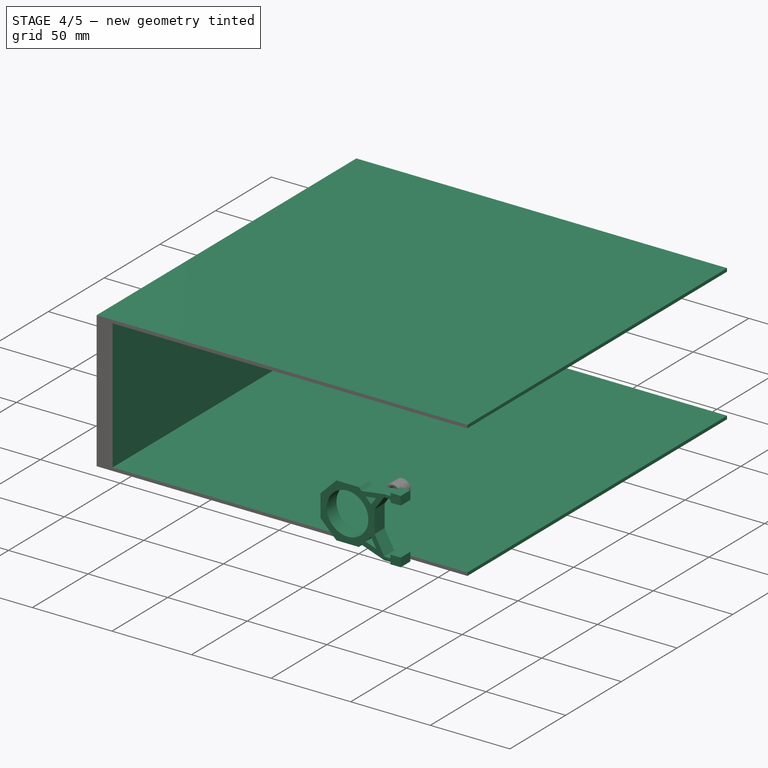
[diagram: stage 4 of 5 — iso view after this stage's code; geometry added in this stage tinted green]
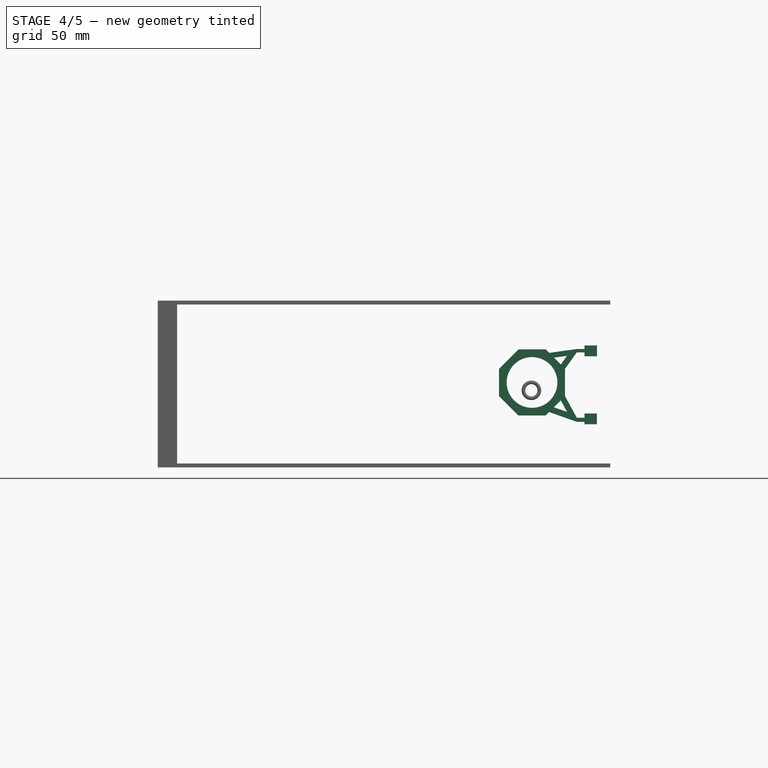
[diagram: stage 4 of 5 — front view after this stage's code; geometry added in this stage tinted green]
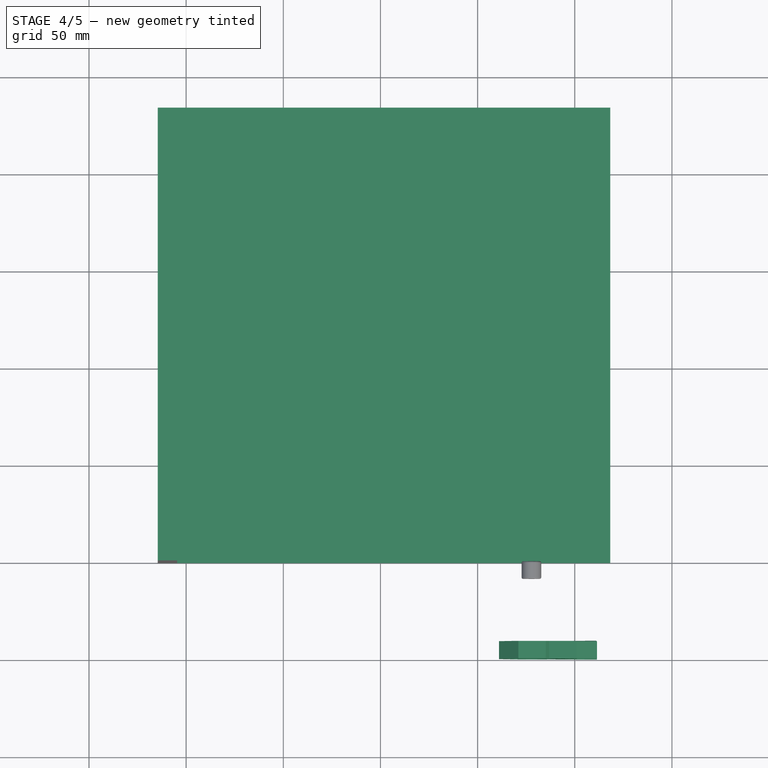
[diagram: stage 4 of 5 — top view after this stage's code; geometry added in this stage tinted green]
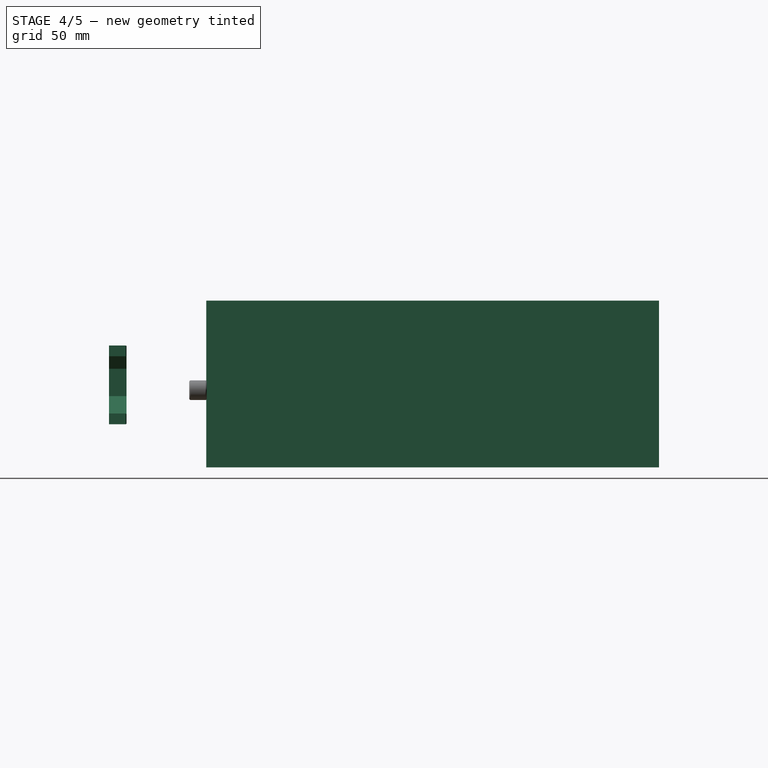
[diagram: stage 4 of 5 — right view after this stage's code; geometry added in this stage tinted green]
FEATURE [PartDesign::Body] Body007  label="Knob"
  Group = -> [DatumPlane004,CopyHole,Sketch012,Pad008,Fillet001]
  Origin = -> Origin007
  Tip = -> Fillet001
FEATURE [PartDesign::ShapeBinder] ShapeBinder004
  Placement = pos=(0,0,0) rot=(1,0,0;1.5708rad)
  Support = -> [Pad001]
  TraceSupport = false
FEATURE [PartDesign::Fillet] Fillet002
  Base = -> Pad007 [Edge58,Edge57,Edge60,Edge59]
  BaseFeature = -> Pad007
  Placement = pos=(0,0,0) rot=(1,0,0;1.5708rad)
  Radius = 1
  SupportTransform = false
FEATURE [PartDesign::Fillet] Fillet003
  Base = -> Fillet002 [Edge27,Edge25,Edge13,Edge15,Edge14]
  BaseFeature = -> Fillet002
  Placement = pos=(0,0,0) rot=(1,0,0;1.5708rad)
  Radius = 0.5
  SupportTransform = false
FEATURE [PartDesign::Body] Body006  label="Potentiometer holder"
  Group = -> [ShapeBinder001,Sketch011,ShapeBinder002,Pad006,ShapeBinder003,Pad007,Fillet002,Fillet003]
  Origin = -> Origin006
  Placement = pos=(0,75,0) rot=(0,0,1;0rad)
  Tip = -> Fillet003
FEATURE [PartDesign::ShapeBinder] CopyHole001
  Placement = pos=(0,0,0) rot=(1,0,0;1.5708rad)
  TraceSupport = false
FEATURE [PartDesign::Plane] DatumPlane005
  Length = 269.394
  MapMode = 5
  Placement = pos=(0,0,0) rot=(-1,0,0;1.5708rad)
  ResizeMode = 0
  Support = -> [CopyHole001]
  Width = 119.394
FEATURE [Sketcher::SketchObject] Sketch013
  FullyConstrained = false
  MapMode = 5
  Placement = pos=(0,0,0) rot=(-1,0,0;1.5708rad)
  Support = -> [DatumPlane005]
  sketch-geometry (8):
    g0: LineSegment StartX=118.272 StartY=42.189 StartZ=0 EndX=-114.629 EndY=42.189 EndZ=0
    g1: LineSegment StartX=-114.629 StartY=42.189 StartZ=0 EndX=-114.629 EndY=-43.61 EndZ=0
    g2: LineSegment StartX=-114.629 StartY=-43.61 StartZ=0 EndX=118.272 EndY=-43.61 EndZ=0
    g3: LineSegment StartX=118.272 StartY=-43.61 StartZ=0 EndX=118.272 EndY=-41.61 EndZ=0
    g4: LineSegment StartX=118.272 StartY=-41.61 StartZ=0 EndX=-104.629 EndY=-41.61 EndZ=0
    g5: LineSegment StartX=-104.629 StartY=-41.61 StartZ=0 EndX=-104.629 EndY=40.189 EndZ=0
    g6: LineSegment StartX=-104.629 StartY=40.189 StartZ=0 EndX=118.272 EndY=40.189 EndZ=0
    g7: LineSegment StartX=118.272 StartY=42.189 StartZ=0 EndX=118.272 EndY=40.189 EndZ=0
  constraints (20):
    c: Horizontal(g0)
    c: Coincident(g0,g1)
    c: Vertical(g1)
    c: Coincident(g1,g2)
    c: Horizontal(g2)
    c: Coincident(g2,g3)
    c: Vertical(g3)
    c: Coincident(g3,g4)
    c: Horizontal(g4)
    c: Coincident(g4,g5)
    c: Vertical(g5)
    c: Coincident(g5,g6)
    c: Horizontal(g6)
    c: Coincident(g7,g0)
    c: Coincident(g7,g6)
    c: Vertical(g7)
    c: DistanceY(g7,g7) = 2
    c: Equal(g7,g3)
    c: DistanceX(g0,g5) = 10
    c: Vertical(g6,g3)
FEATURE [PartDesign::Pad] Pad009
  Direction = (1,1,1)
  Length = 233
  Length2 = 100
  Placement = pos=(0,0,0) rot=(-1,0,0;1.5708rad)
  Profile = -> Sketch013
  Type = 0
FEATURE [PartDesign::ShapeBinder] ShapeBinder005  label="Rails ShapeBinder"
  Support = -> [Fillet003]
  TraceSupport = false
FEATURE [PartDesign::Plane] DatumPlane007
  Length = 151.307
  MapMode = 5
  Placement = pos=(0,-41,-9e-15) rot=(1,0,0;1.5708rad)
  ResizeMode = 0
  Support = -> [Pocket001]
  Width = 66.4245
FEATURE [PartDesign::Body] Body004  label="PCB"
  Group = -> [Sketch004,Pad003,DatumPlane003,Sketch010,Pad005,DatumPlane006,Sketch014,Pad010,DatumPlane007]
  Origin = -> Origin004
  Placement = pos=(0,64,0) rot=(0,0,1;0rad)
  Tip = -> Pad010
FEATURE [PartDesign::ShapeBinder] CopyPocket001
  Placement = pos=(0,-41,0) rot=(0,0,1;0rad)
  TraceSupport = false
FEATURE [PartDesign::Plane] DatumPlane008
  Length = 152.95
  MapMode = 5
  Placement = pos=(0,-41,0) rot=(1,0,0;1.5708rad)
  ResizeMode = 0
  Support = -> [CopyPocket001]
  Width = 66.5186
FEATURE [PartDesign::ShapeBinder] ShapeBinder006  label="Hole ShapeBinder"
  Placement = pos=(0,0,0) rot=(1,0,0;1.5708rad)
  Support = -> [Hole]
  TraceSupport = false
FEATURE [Sketcher::SketchObject] Sketch015
  ExternalGeometry = -> [ShapeBinder005,ShapeBinder006]
  FullyConstrained = false
  MapMode = 5
  Placement = pos=(0,-41,0) rot=(1,0,0;1.5708rad)
  Support = -> [DatumPlane008]
  sketch-geometry (38):
    g0: LineSegment StartX=105.031 StartY=18.7111 StartZ=0 EndX=105.031 EndY=20.5111 EndZ=0
    g1: LineSegment StartX=105.031 StartY=20.5111 StartZ=0 EndX=111.431 EndY=20.5111 EndZ=0
    g2: LineSegment StartX=111.431 StartY=20.5111 StartZ=0 EndX=111.431 EndY=15.0111 EndZ=0
    g3: LineSegment StartX=111.431 StartY=15.0111 StartZ=0 EndX=105.031 EndY=15.0111 EndZ=0
    g4: LineSegment StartX=105.031 StartY=15.0111 StartZ=0 EndX=105.031 EndY=17.0111 EndZ=0
    g5: LineSegment StartX=101.031 StartY=-16.6648 StartZ=0 EndX=105 EndY=-16.6648 EndZ=0
    g6: LineSegment StartX=105 StartY=-16.6648 StartZ=0 EndX=105 EndY=-14.5 EndZ=0
    g7: LineSegment StartX=105 StartY=-14.5 StartZ=0 EndX=111.4 EndY=-14.5 EndZ=0
    g8: LineSegment StartX=111.4 StartY=-14.5 StartZ=0 EndX=111.4 EndY=-20 EndZ=0
    g9: LineSegment StartX=111.4 StartY=-20 StartZ=0 EndX=105 EndY=-20 EndZ=0
    g10: LineSegment StartX=105 StartY=-20 StartZ=0 EndX=105 EndY=-18.75 EndZ=0
    g11: LineSegment StartX=105 StartY=-18.75 StartZ=0 EndX=101.031 EndY=-18.75 EndZ=0
    g12: LineSegment StartX=85.0416 StartY=-15.5 StartZ=0 EndX=70.9584 EndY=-15.5 EndZ=0
    g13: LineSegment StartX=61 StartY=-5.54163 StartZ=0 EndX=61 EndY=8.54163 EndZ=0
    g14: LineSegment StartX=70.9584 StartY=18.5 StartZ=0 EndX=85.0416 EndY=18.5 EndZ=0
    g15: LineSegment StartX=101.031 StartY=18.7111 StartZ=0 EndX=105.031 EndY=18.7111 EndZ=0
    g16: LineSegment StartX=105.031 StartY=17.0111 StartZ=0 EndX=101.031 EndY=17.0111 EndZ=0
    g17: Circle CenterX=78 CenterY=1.5 CenterZ=0 NormalX=0 NormalY=0 NormalZ=1 AngleXU=0 Radius=13.05
    g18: LineSegment StartX=78 StartY=1.5 StartZ=0 EndX=78 EndY=-15.5 EndZ=0
    g19: LineSegment StartX=78 StartY=1.5 StartZ=0 EndX=78 EndY=18.5 EndZ=0
    g20: LineSegment StartX=61 StartY=8.54163 StartZ=0 EndX=70.9584 EndY=18.5 EndZ=0
    g21: LineSegment StartX=61 StartY=-5.54163 StartZ=0 EndX=70.9584 EndY=-15.5 EndZ=0
    g22: LineSegment StartX=78 StartY=1.5 StartZ=0 EndX=61 EndY=1.5 EndZ=0
    g23: LineSegment StartX=85.0416 StartY=18.5 StartZ=0 EndX=86.8094 EndY=16.7322 EndZ=0
    g24: LineSegment StartX=85.0416 StartY=-15.5 StartZ=0 EndX=86.8094 EndY=-13.7322 EndZ=0
    g25: LineSegment StartX=86.8094 StartY=16.7322 StartZ=0 EndX=101.031 EndY=18.7111 EndZ=0
    g26: LineSegment StartX=101.031 StartY=-18.75 StartZ=0 EndX=86.8094 EndY=-13.7322 EndZ=0
    g27: LineSegment StartX=95 StartY=8.54163 StartZ=0 EndX=95 EndY=-5.54163 EndZ=0
    g28: LineSegment StartX=95 StartY=8.54163 StartZ=0 EndX=101.031 EndY=17.0111 EndZ=0
    g29: LineSegment StartX=95 StartY=-5.54163 StartZ=0 EndX=101.031 EndY=-16.6648 EndZ=0
    g30: LineSegment StartX=85.0416 StartY=-15.5 StartZ=0 EndX=101.31 EndY=0.768546 EndZ=0
    g31: LineSegment StartX=85.0416 StartY=18.5 StartZ=0 EndX=105.432 EndY=-1.89018 EndZ=0
    g32: LineSegment StartX=96.0204 StartY=-13.6516 StartZ=0 EndX=92.8103 EndY=-7.73136 EndZ=0
    g33: LineSegment StartX=92.8103 StartY=-7.73136 StartZ=0 EndX=89.2713 EndY=-11.2704 EndZ=0
    g34: LineSegment StartX=96.0204 StartY=-13.6516 StartZ=0 EndX=89.2713 EndY=-11.2704 EndZ=0
    g35: LineSegment StartX=95.9969 StartY=15.2062 StartZ=0 EndX=92.8103 EndY=10.7314 EndZ=0
    g36: LineSegment StartX=89.2713 StartY=14.2704 StartZ=0 EndX=92.8103 EndY=10.7314 EndZ=0
    g37: LineSegment StartX=89.2713 StartY=14.2704 StartZ=0 EndX=95.9969 EndY=15.2062 EndZ=0
  constraints (99):
    c: Coincident(g-3,g0)
    c: Coincident(g0,g-3)
    c: Coincident(g0,g1)
    c: Coincident(g1,g-5)
    c: Coincident(g1,g2)
    c: Coincident(g2,g-5)
    c: Coincident(g2,g3)
    c: Coincident(g3,g-4)
    c: Coincident(g3,g4)
    c: Coincident(g4,g-4)
    c: Coincident(g5,g-7)
    c: Coincident(g5,g6)
    c: Coincident(g6,g-7)
    c: Coincident(g6,g7)
    c: Coincident(g7,g-6)
    c: Coincident(g7,g8)
    c: Coincident(g8,g-6)
    c: Coincident(g8,g9)
    c: Coincident(g9,g-9)
    c: Coincident(g9,g10)
    c: Coincident(g10,g-9)
    c: Coincident(g10,g11)
    c: Horizontal(g11)
    c: Horizontal(g12)
    c: Vertical(g13)
    c: Horizontal(g14)
    c: Horizontal(g15)
    c: Coincident(g0,g15)
    c: Coincident(g16,g4)
    c: Horizontal(g16)
    c: Diameter(g17) = 26.1
    c: Horizontal(g5)
    c: Vertical(g15,g16)
    c: Vertical(g16,g5)
    c: Vertical(g5,g11)
    c: DistanceX(g15,g15) = 4
    c: Equal(g13,g14)
    c: DistanceY(g-10,g17) = 1.5
    c: DistanceX(g17,g-10) = 2
    c: Coincident(g18,g17)
    c: PointOnObject(g18,g12)
    c: Vertical(g18)
    c: Coincident(g19,g17)
    c: PointOnObject(g19,g14)
    c: Vertical(g19)
    c: Equal(g19,g18)
    c: Coincident(g20,g14)
    c: Coincident(g13,g20)
    c: Coincident(g21,g13)
    c: Coincident(g21,g12)
    c: Equal(g20,g21)
    c: Angle(g12,g21) = 2.35619
    c: Angle(g20,g14) = 2.35619
    c: Equal(g20,g13)
    c: Coincident(g22,g17)
    c: PointOnObject(g22,g13)
    c: Horizontal(g22)
    c: Equal(g19,g22)
    c: Coincident(g23,g14)
    c: Angle(g14,g23) = 2.35619
    c: Vertical(g12,g14)
    c: Coincident(g24,g12)
    c: Angle(g24,g12) = 2.35619
    c: Vertical(g23,g24)
    c: Coincident(g25,g23)
    c: Coincident(g25,g15)
    c: Coincident(g26,g11)
    c: Coincident(g26,g24)
    c: Vertical(g27)
    c: Equal(g27,g13)
    c: Horizontal(g27,g13)
    c: Coincident(g28,g27)
    c: Coincident(g28,g16)
    c: Coincident(g29,g27)
    c: Coincident(g29,g5)
    c: Coincident(g30,g12)
    c: PointOnObject(g24,g30)
    c: PointOnObject(g27,g30)
    c: Coincident(g31,g14)
    c: PointOnObject(g23,g31)
    c: PointOnObject(g32,g30)
    c: PointOnObject(g36,g31)
    c: Vertical(g36,g32)
    c: Coincident(g33,g32)
    c: PointOnObject(g33,g30)
    c: Coincident(g34,g32)
    c: Coincident(g34,g33)
    c: PointOnObject(g35,g31)
    c: Vertical(g35,g32)
    c: PointOnObject(g36,g31)
    c: Coincident(g37,g36)
    c: Vertical(g36,g33)
    c: Coincident(g37,g35)
    c: DistanceX(g22,g22) = 17
    c: Distance(g24) = 2.5
    c: Parallel(g26,g34)
    c: Parallel(g37,g25)
    c: Parallel(g35,g28)
    c: Parallel(g32,g29)
FEATURE [PartDesign::Pad] Pad011  label="Bearing holder001"
  Direction = (1,1,1)
  Length = 9
  Length2 = 100
  Placement = pos=(0,-41,0) rot=(1,0,0;1.5708rad)
  Profile = -> Sketch015
  Type = 0
FEATURE [PartDesign::Fillet] Fillet004
  Base = -> Pad011 [Edge80,Edge60,Edge54,Edge57,Edge30,Edge24,Edge27,Edge21,Edge33,Edge18,Edge36,Edge63,Edge66,Edge51,Edge48]
  BaseFeature = -> Pad011
  Placement = pos=(0,-41,0) rot=(1,0,0;1.5708rad)
  Radius = 0.5
  SupportTransform = false
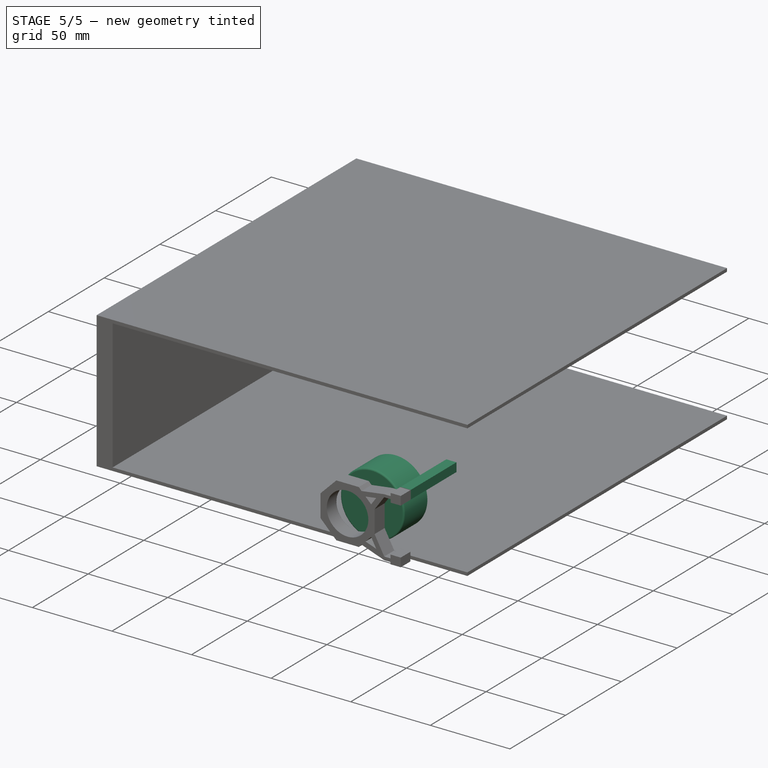
[diagram: stage 5 of 5 — iso view after this stage's code; geometry added in this stage tinted green]
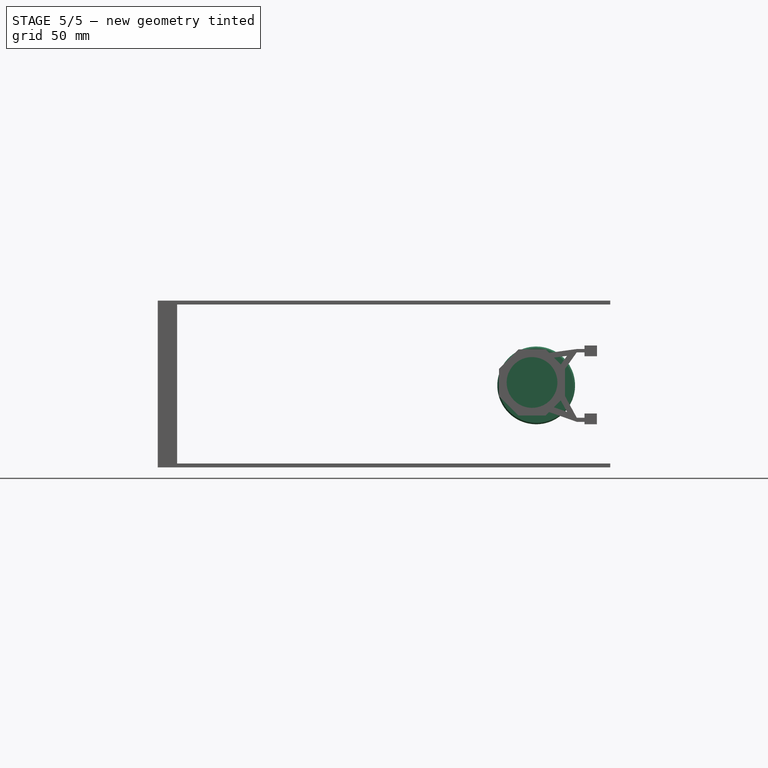
[diagram: stage 5 of 5 — front view after this stage's code; geometry added in this stage tinted green]
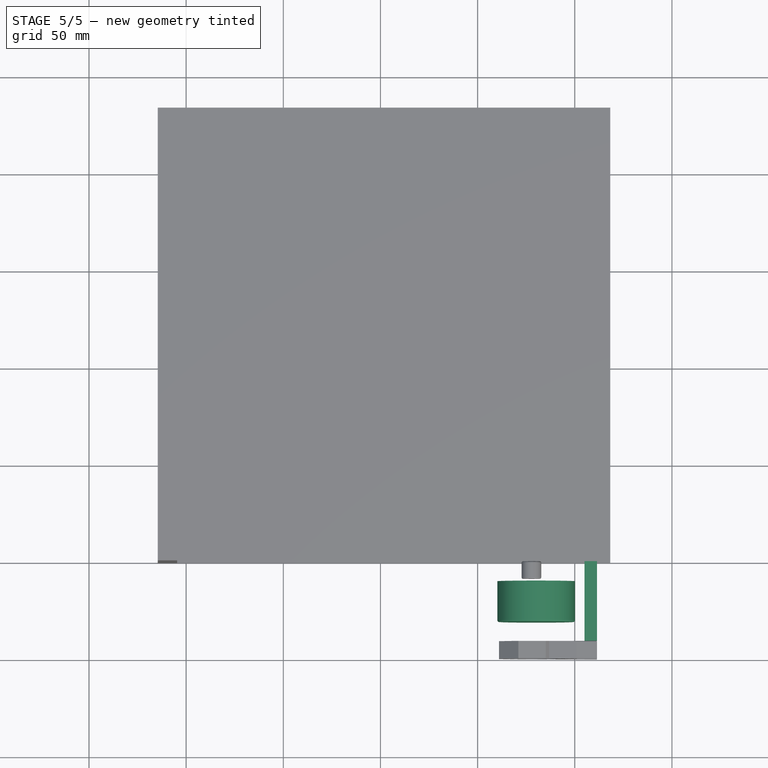
[diagram: stage 5 of 5 — top view after this stage's code; geometry added in this stage tinted green]
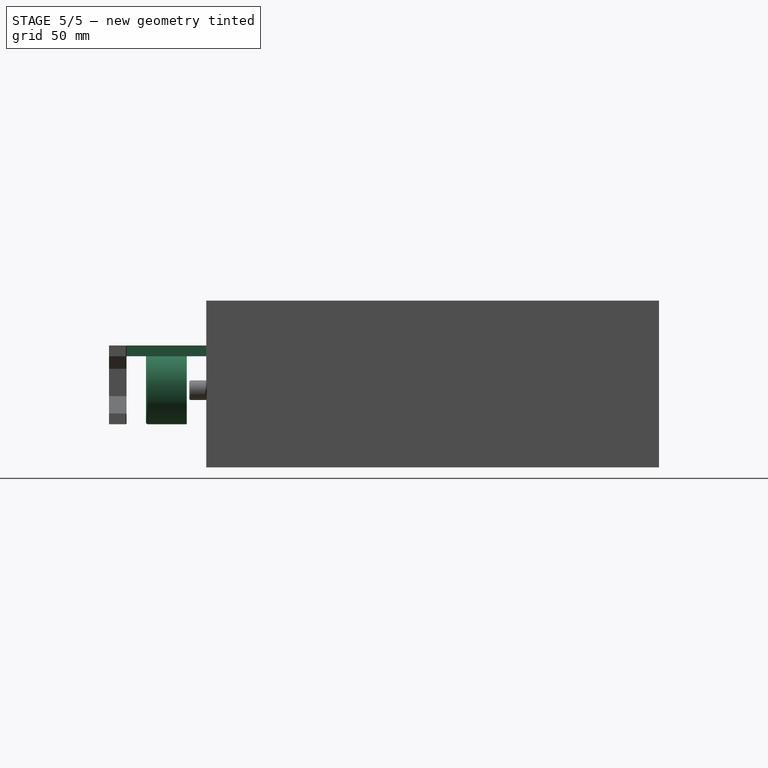
[diagram: stage 5 of 5 — right view after this stage's code; geometry added in this stage tinted green]
FEATURE [Sketcher::SketchObject] Sketch001
  ExternalGeometry = -> [Fillet]
  FullyConstrained = false
  MapMode = 5
  Placement = pos=(0,0,0) rot=(-1,0,0;1.5708rad)
  Support = -> [Fillet]
  sketch-geometry (12):
    g0: LineSegment StartX=-105 StartY=40 StartZ=0 EndX=105 EndY=40 EndZ=0
    g1: LineSegment StartX=105 StartY=40 StartZ=0 EndX=105 EndY=-40 EndZ=0
    g2: LineSegment StartX=105 StartY=-40 StartZ=0 EndX=-105 EndY=-40 EndZ=0
    g3: LineSegment StartX=-105 StartY=-40 StartZ=0 EndX=-105 EndY=40 EndZ=0
    g4: LineSegment StartX=-80 StartY=40 StartZ=0 EndX=-80 EndY=0 EndZ=0
    g5: LineSegment StartX=-80 StartY=0 StartZ=0 EndX=-105 EndY=0 EndZ=0
    g6: LineSegment StartX=-120 StartY=13.3387 StartZ=0 EndX=-80 EndY=13.3387 EndZ=0
    g7: Circle CenterX=-80 CenterY=0 CenterZ=0 NormalX=0 NormalY=0 NormalZ=1 AngleXU=0 Radius=5
    g8: Circle CenterX=80 CenterY=0 CenterZ=0 NormalX=0 NormalY=0 NormalZ=1 AngleXU=0 Radius=3.5
    g9: Circle CenterX=-57 CenterY=38.5 CenterZ=0 NormalX=0 NormalY=0 NormalZ=1 AngleXU=0 Radius=1.5
    g10: Circle CenterX=57 CenterY=38.5 CenterZ=0 NormalX=0 NormalY=0 NormalZ=1 AngleXU=0 Radius=1.5
    g11: GeomPoint X=-57 Y=40 Z=0
  constraints (31):
    c: Coincident(g0,g1)
    c: Coincident(g1,g2)
    c: Coincident(g2,g3)
    c: Coincident(g3,g0)
    c: Horizontal(g0)
    c: Horizontal(g2)
    c: Vertical(g1)
    c: Vertical(g3)
    c: DistanceX(g0,g0) = 210
    c: DistanceY(g1,g1) = 80
    c: Symmetric(g0,g1,g-1)
    c: PointOnObject(g4,g0)
    c: PointOnObject(g4,g-1)
    c: Vertical(g4)
    c: Coincident(g5,g4)
    c: PointOnObject(g5,g3)
    c: PointOnObject(g5,g-1)
    c: PointOnObject(g6,g-3)
    c: PointOnObject(g6,g4)
    c: Horizontal(g6)
    c: DistanceX(g6,g6) = 40
    c: Coincident(g7,g4)
    c: Symmetric(g7,g8,g-2)
    c: Diameter(g7) = 10
    c: Diameter(g8) = 7
    c: Equal(g9,g10)
    c: Diameter(g9) = 3
    c: Distance(g9,g-3) = 63
    c: Symmetric(g10,g9,g-2)
    c: PointOnObject(g11,g9)
    c: PointOnObject(g11,g0)
FEATURE [Sketcher::SketchObject] Sketch002
  FullyConstrained = false
  MapMode = 5
  Placement = pos=(0,0,0) rot=(1,0,0;1.5708rad)
  Support = -> [XZ_Plane003]
  expr: Constraints[13] = Spreadsheet.TrachHeight
  expr: Constraints[12] = Spreadsheet.TrackDepth
  sketch-geometry (8):
    g0: LineSegment StartX=105.031 StartY=18.7111 StartZ=0 EndX=105.031 EndY=20.5111 EndZ=0
    g1: LineSegment StartX=105.031 StartY=20.5111 StartZ=0 EndX=111.431 EndY=20.5111 EndZ=0
    g2: LineSegment StartX=111.431 StartY=20.5111 StartZ=0 EndX=111.431 EndY=15.0111 EndZ=0
    g3: LineSegment StartX=111.431 StartY=15.0111 StartZ=0 EndX=105.031 EndY=15.0111 EndZ=0
    g4: LineSegment StartX=105.031 StartY=15.0111 StartZ=0 EndX=105.031 EndY=17.0111 EndZ=0
    g5: LineSegment StartX=105.031 StartY=17.0111 StartZ=0 EndX=109.931 EndY=17.7469 EndZ=0
    g6: LineSegment StartX=109.646 StartY=19.4735 StartZ=0 EndX=105.031 EndY=18.7111 EndZ=0
    g7: LineSegment StartX=109.646 StartY=19.4735 StartZ=0 EndX=109.931 EndY=17.7469 EndZ=0
  constraints (22):
    c: Coincident(g0,g1)
    c: Horizontal(g1)
    c: Coincident(g1,g2)
    c: Coincident(g2,g3)
    c: Horizontal(g3)
    c: Coincident(g3,g4)
    c: Vertical(g4)
    c: Coincident(g4,g5)
    c: Vertical(g2)
    c: Vertical(g0)
    c: Coincident(g0,g6)
    c: Vertical(g0,g4)
    c: DistanceX(g1,g1) = 6.4
    c: DistanceY(g2,g2) = 5.5
    c: DistanceY(g4,g4) = 2
    c: DistanceY(g4,g0) = 1.7
    c: Coincident(g7,g6)
    c: Coincident(g7,g5)
    c: Distance(g7) = 1.75
    c: DistanceX(g5,g2) = 1.5
    c: Angle(g6,g7) = 1.5708
    c: Angle(g4,g5) = 1.71985
FEATURE [PartDesign::Pad] Pad001
  Direction = (1,1,1)
  Length = 41
  Length2 = 100
  Placement = pos=(0,0,0) rot=(1,0,0;1.5708rad)
  Profile = -> Sketch002
  Type = 0
FEATURE [PartDesign::Plane] DatumPlane
  Length = 162.17
  MapMode = 5
  Placement = pos=(-0.218535,0,1.32277) rot=(0.996651,0,0.081774;3.14159rad)
  ResizeMode = 0
  Support = -> [Pad001]
  Width = 85.4133
FEATURE [Sketcher::SketchObject] Sketch003
  ExternalGeometry = -> [Pad001]
  FullyConstrained = true
  MapMode = 5
  Placement = pos=(-0.218535,0,1.32277) rot=(0.996651,0,0.081774;3.14159rad)
  Support = -> [DatumPlane]
  expr: Constraints[4] = 2.5mm + 0.3mm
  sketch-geometry (2):
    g0: Circle CenterX=108.554 CenterY=38.5 CenterZ=0 NormalX=0 NormalY=0 NormalZ=1 AngleXU=0 Radius=1
    g1: Circle CenterX=108.554 CenterY=2.5 CenterZ=0 NormalX=0 NormalY=0 NormalZ=1 AngleXU=0 Radius=1
  constraints (6):
    c: Diameter(g0) = 2
    c: Equal(g0,g1)
    c: Vertical(g1,g0)
    c: DistanceY(g0,g-3) = 2.5
    c: DistanceX(g0,g-3) = 2.8
    c: DistanceY(g-1,g1) = 2.5
FEATURE [PartDesign::Pad] Pad002
  BaseFeature = -> Pad001
  Direction = (1,1,1)
  Length = 0.5
  Length2 = 100
  Placement = pos=(0,0,0) rot=(1,0,0;1.5708rad)
  Profile = -> Sketch003
  Type = 0
FEATURE [PartDesign::Body] Body001  label="Front Plate"
  Group = -> [Sketch,Pad,Fillet,Sketch001,Hole]
  Origin = -> Origin001
  Tip = -> Hole
FEATURE [PartDesign::ShapeBinder] CopyHole
  Placement = pos=(0,0,0) rot=(1,0,0;1.5708rad)
  TraceSupport = false
FEATURE [PartDesign::Plane] DatumPlane004
  Length = 269.394
  MapMode = 5
  Placement = pos=(0,-10,-2.2e-15) rot=(1,0,0;1.5708rad)
  ResizeMode = 0
  Support = -> [CopyHole]
  Width = 119.394
FEATURE [Sketcher::SketchObject] Sketch012
  FullyConstrained = false
  MapMode = 5
  Placement = pos=(0,-10,-2.2e-15) rot=(1,0,0;1.5708rad)
  Support = -> [DatumPlane004]
  sketch-geometry (1):
    g0: Circle CenterX=80.1484 CenterY=0 CenterZ=0 NormalX=0 NormalY=0 NormalZ=1 AngleXU=0 Radius=20
  constraints (2):
    c: PointOnObject(g0,g-1)
    c: Diameter(g0) = 40
FEATURE [PartDesign::Pad] Pad008
  Direction = (1,1,1)
  Length = 21
  Length2 = 100
  Placement = pos=(0,-10,-1e-15) rot=(1,0,0;1.5708rad)
  Profile = -> Sketch012
  Type = 0
FEATURE [PartDesign::Fillet] Fillet001
  Base = -> Pad008 [Edge3]
  BaseFeature = -> Pad008
  Placement = pos=(0,-10,-1e-15) rot=(1,0,0;1.5708rad)
  Radius = 1
  SupportTransform = false
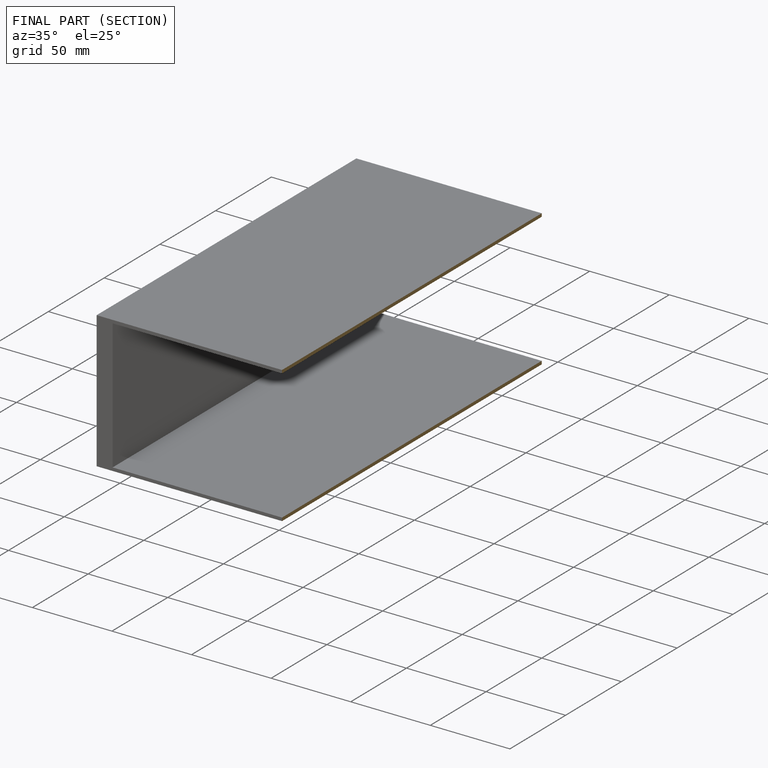
[diagram: finished part — half-section view (interior)]
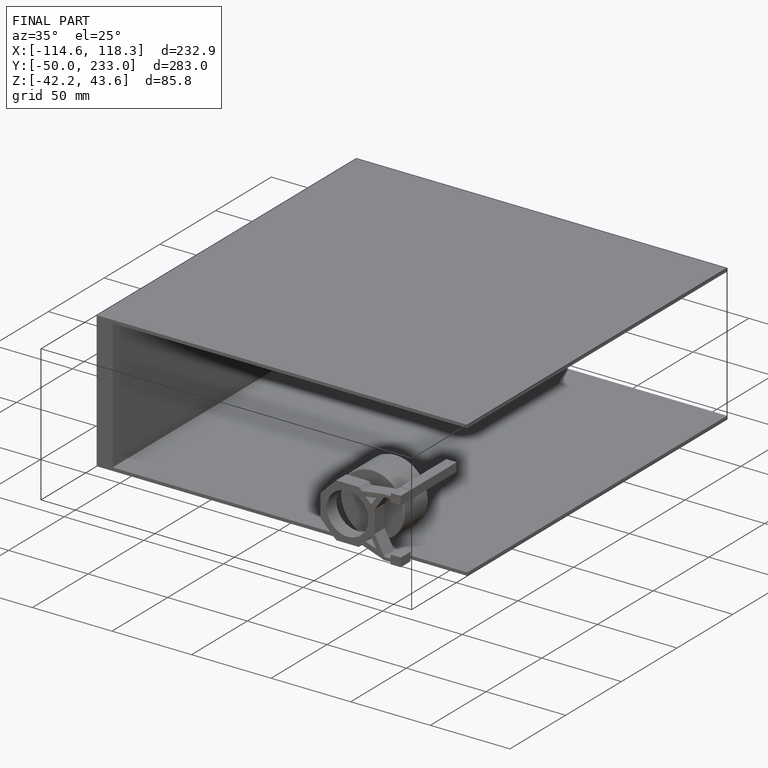
[diagram: finished part — iso view with bounding-box wireframe]
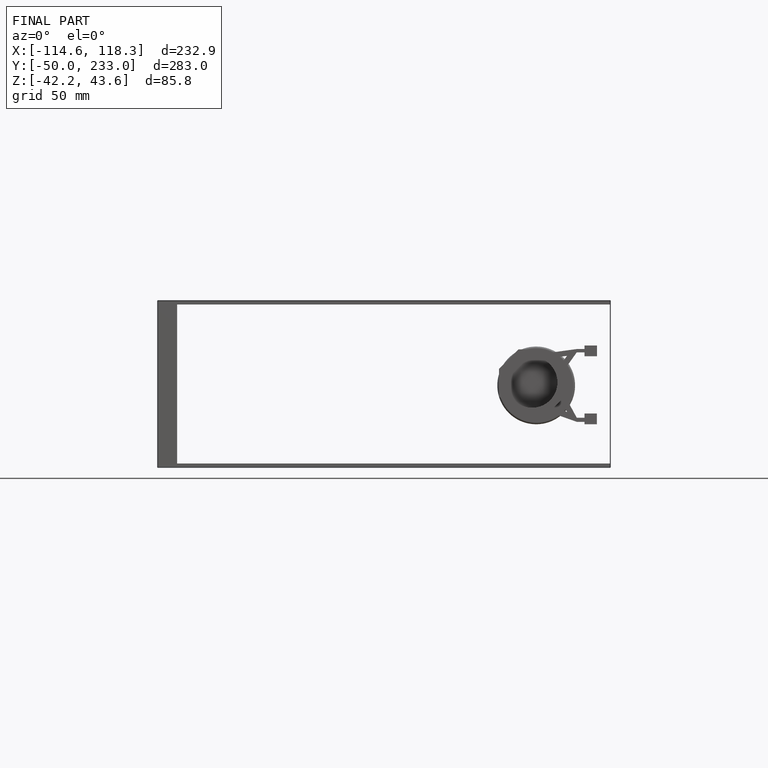
[diagram: finished part — front view with bounding-box wireframe]
